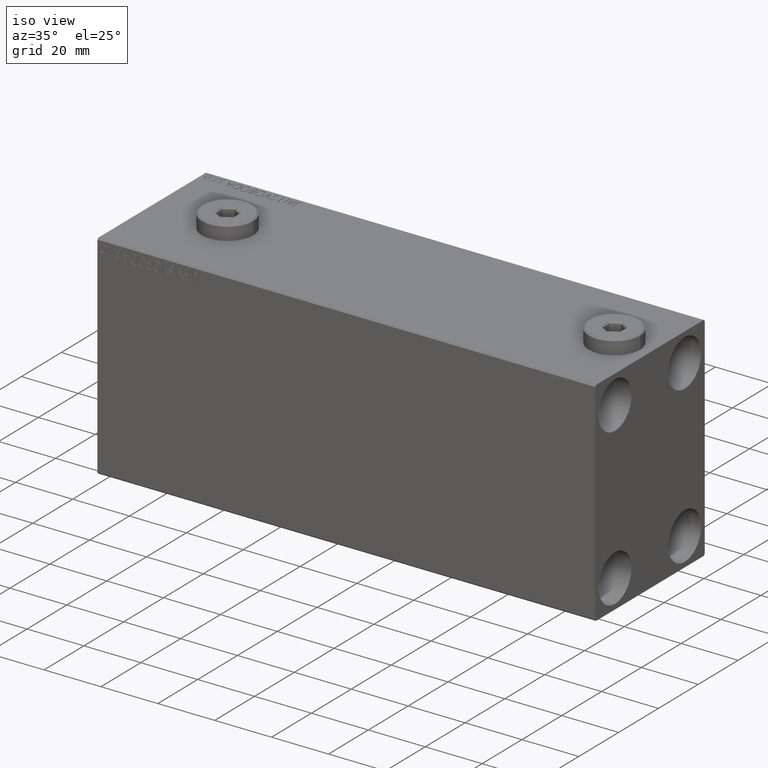
[diagram: clean part render]
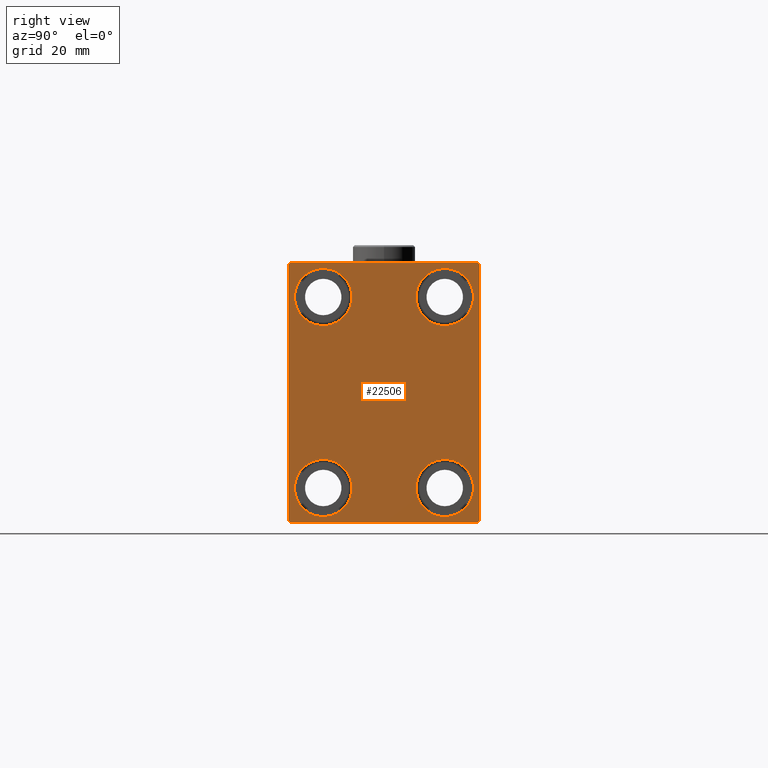
[diagram: tour spotlight — one face highlighted and labeled with its STEP entity id]
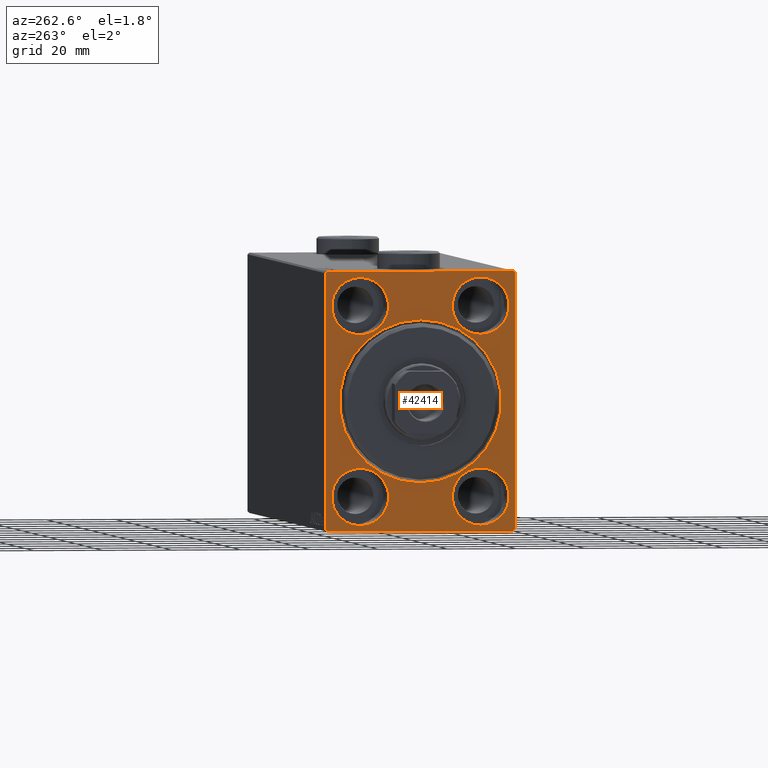
[diagram: tour spotlight — one face highlighted and labeled with its STEP entity id]
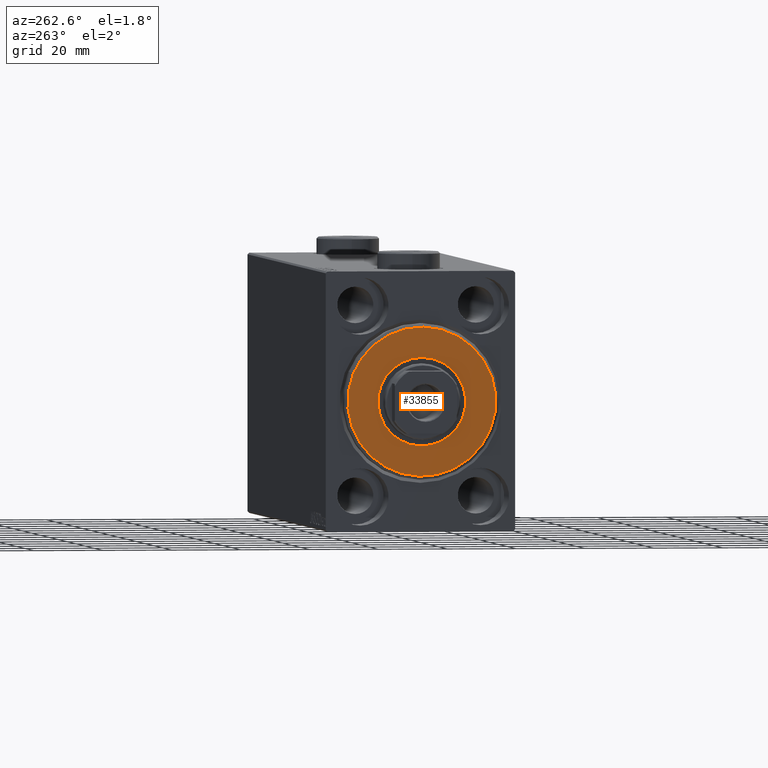
[diagram: tour spotlight — one face highlighted and labeled with its STEP entity id]
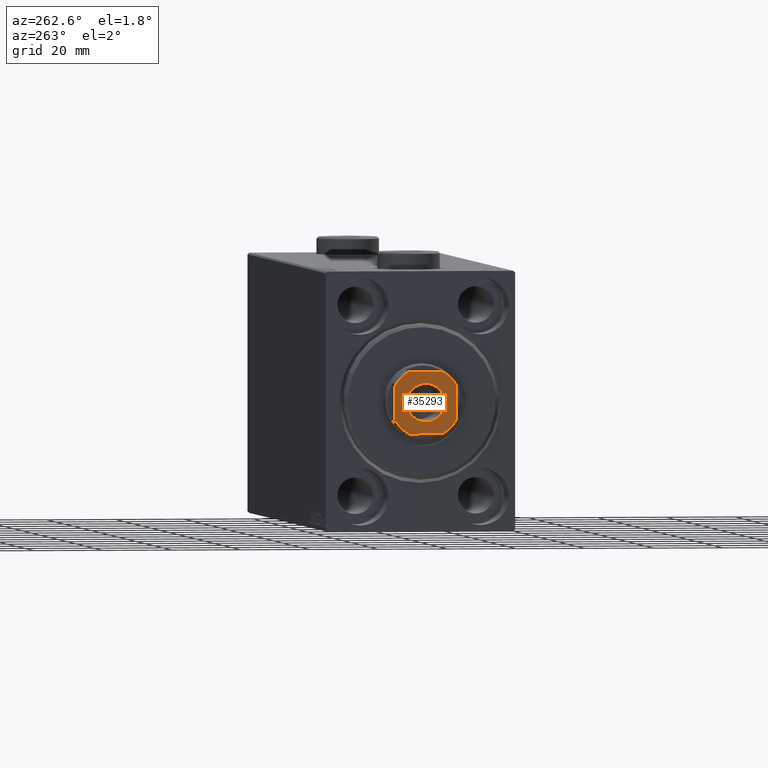
[diagram: tour spotlight — one face highlighted and labeled with its STEP entity id]
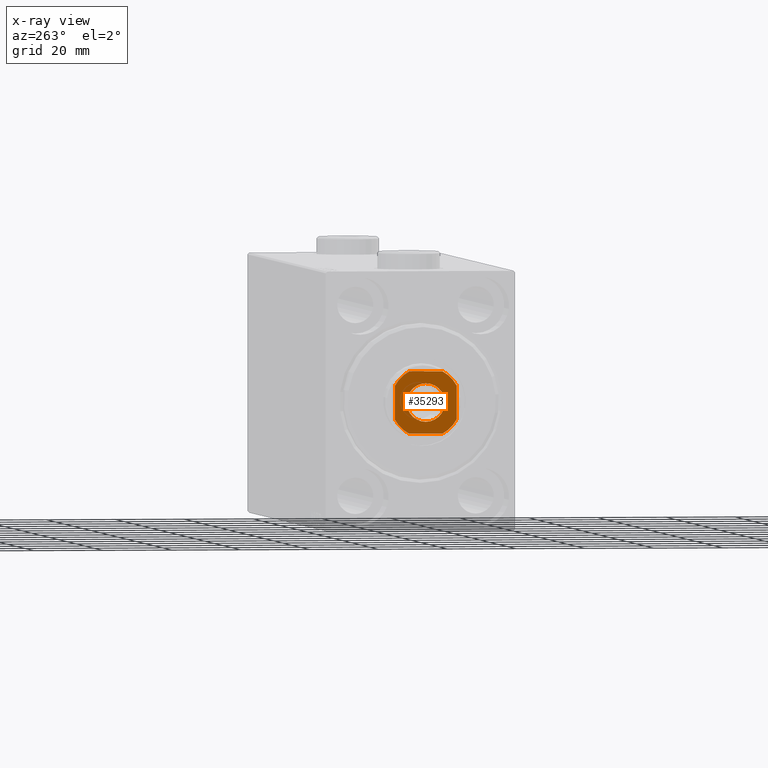
[diagram: x-ray of the same camera — body ghosted, this tour face saturated]
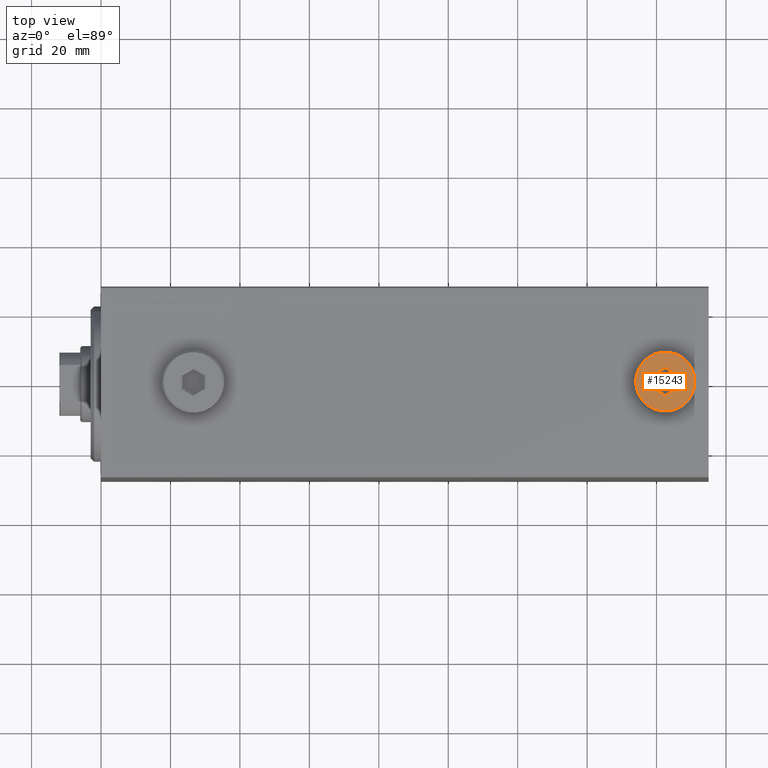
[diagram: tour spotlight — one face highlighted and labeled with its STEP entity id]
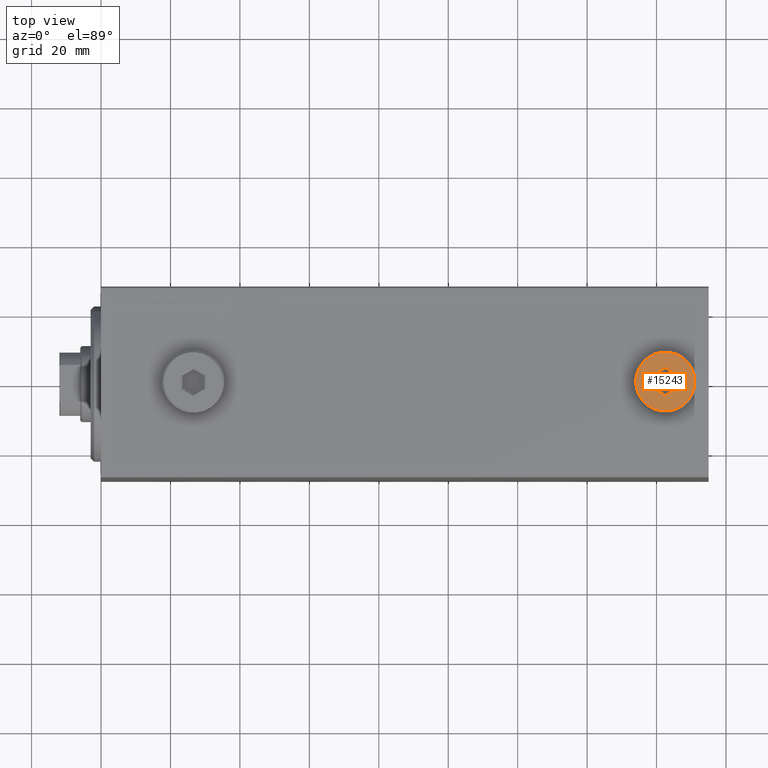
[diagram: tour spotlight — one face highlighted and labeled with its STEP entity id]
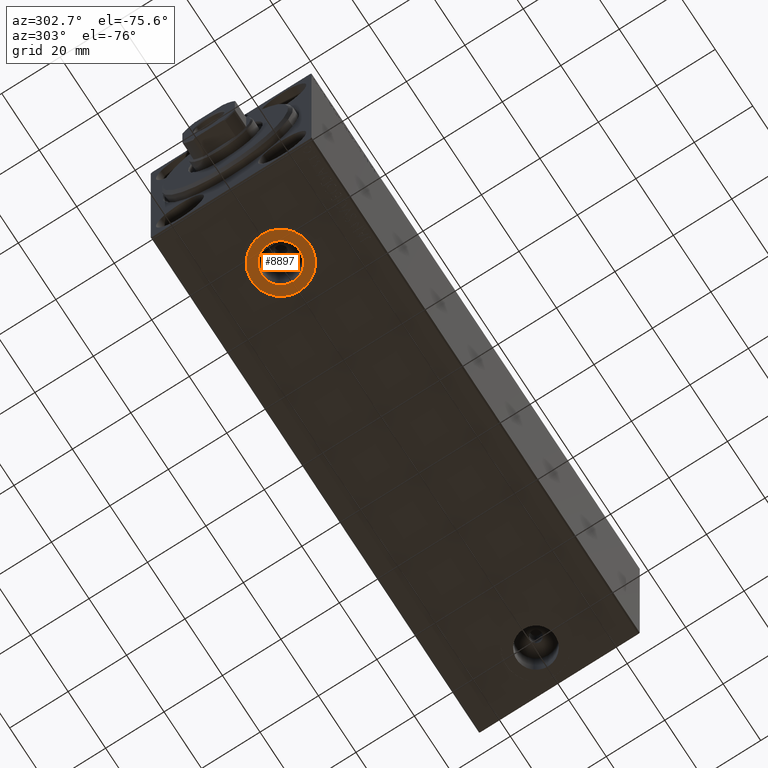
[diagram: tour spotlight — one face highlighted and labeled with its STEP entity id]
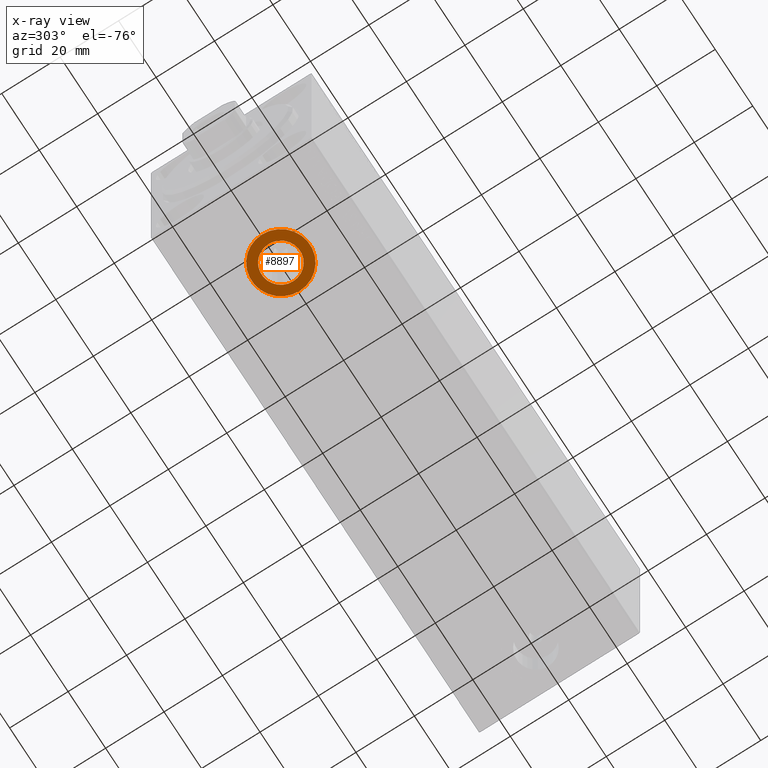
[diagram: x-ray of the same camera — body ghosted, this tour face saturated]
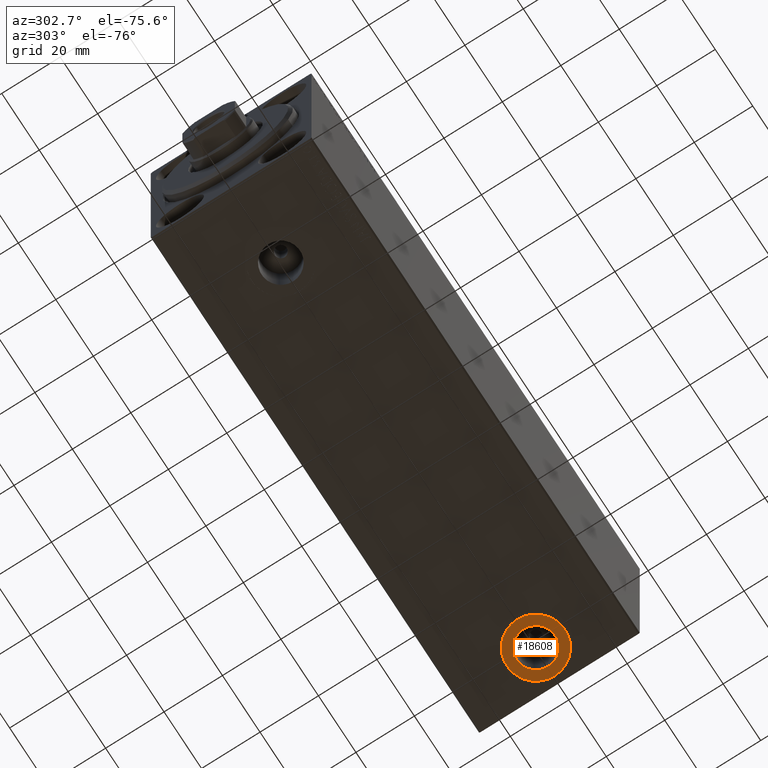
[diagram: tour spotlight — one face highlighted and labeled with its STEP entity id]
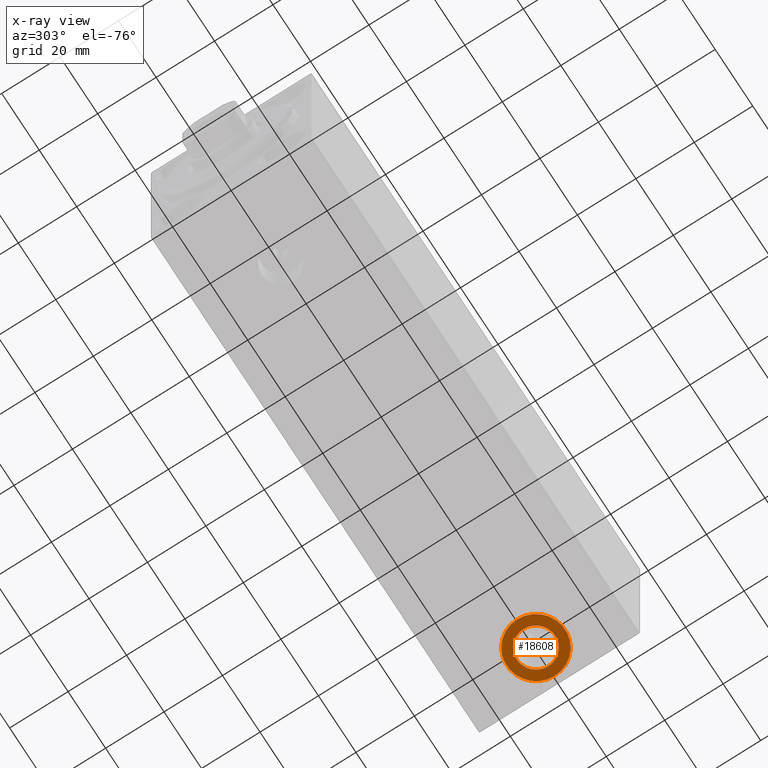
[diagram: x-ray of the same camera — body ghosted, this tour face saturated]
A machine part: a face-by-face anatomy tour. The part has 916 B-rep faces; the first image is the clean iso view, then the 8 largest visible faces are spotlighted one at a time (largest first), each with its STEP entity span.

Face 1 — right view, entity #22506. In plain terms, the highlighted planar face has unit normal (1, 0, 0).
Definition (entity closure, byte-faithful):
#135 = FACE_BOUND ( 'NONE', #23817, .T. ) ;
#458 = VERTEX_POINT ( 'NONE', #9889 ) ;
#463 = ORIENTED_EDGE ( 'NONE', *, *, #34625, .T. ) ;
#505 = AXIS2_PLACEMENT_3D ( 'NONE', #3650, #18273, #17585 ) ;
#539 = VECTOR ( 'NONE', #19696, 1000.000000000000000 ) ;
#581 = FACE_BOUND ( 'NONE', #4417, .T. ) ;
#710 = CARTESIAN_POINT ( 'NONE',  ( 175.0000000000000000, -27.00000000000000355, 37.50000000000000000 ) ) ;
#959 = CARTESIAN_POINT ( 'NONE',  ( 175.0000000000000000, 27.50000000000000355, -37.50000000000000000 ) ) ;
#1712 = EDGE_CURVE ( 'NONE', #40381, #458, #39927, .T. ) ;
#2036 = CARTESIAN_POINT ( 'NONE',  ( 175.0000000000000000, 17.49999999999999645, -27.50000000000000355 ) ) ;
#2165 = ORIENTED_EDGE ( 'NONE', *, *, #31935, .T. ) ;
#2197 = AXIS2_PLACEMENT_3D ( 'NONE', #8607, #14807, #35809 ) ;
#2351 = DIRECTION ( 'NONE',  ( -0.000000000000000000, -0.7071067811865524577, 0.7071067811865426878 ) ) ;
#2761 = EDGE_CURVE ( 'NONE', #34136, #20269, #36837, .T. ) ;
#3360 = FACE_BOUND ( 'NONE', #28188, .T. ) ;
#3650 = CARTESIAN_POINT ( 'NONE',  ( 175.0000000000000000, 17.50000000000000355, 27.49999999999999645 ) ) ;
#3653 = CIRCLE ( 'NONE', #2197, 8.249999999999992895 ) ;
#4031 = CARTESIAN_POINT ( 'NONE',  ( 175.0000000000000000, 0.000000000000000000, 0.000000000000000000 ) ) ;
#4118 = DIRECTION ( 'NONE',  ( -0.000000000000000000, 0.7071067811865474617, 0.7071067811865474617 ) ) ;
#4401 = EDGE_LOOP ( 'NONE', ( #15164, #42633 ) ) ;
#4417 = EDGE_LOOP ( 'NONE', ( #12395, #17842 ) ) ;
#4576 = CIRCLE ( 'NONE', #41077, 8.249999999999992895 ) ;
#6340 = CARTESIAN_POINT ( 'NONE',  ( 175.0000000000000000, -17.49999999999999645, 27.49999999999999645 ) ) ;
#6691 = AXIS2_PLACEMENT_3D ( 'NONE', #44899, #13605, #10163 ) ;
#6719 = VECTOR ( 'NONE', #7999, 1000.000000000000114 ) ;
#7176 = DIRECTION ( 'NONE',  ( 0.000000000000000000, 0.000000000000000000, 1.000000000000000000 ) ) ;
#7219 = DIRECTION ( 'NONE',  ( 1.000000000000000000, 0.000000000000000000, 0.000000000000000000 ) ) ;
#7999 = DIRECTION ( 'NONE',  ( 0.000000000000000000, -0.7071067811865474617, -0.7071067811865474617 ) ) ;
#8082 = CARTESIAN_POINT ( 'NONE',  ( 175.0000000000000000, -17.49999999999999645, 35.74999999999999289 ) ) ;
#8607 = CARTESIAN_POINT ( 'NONE',  ( 175.0000000000000000, 17.50000000000000355, 27.49999999999999645 ) ) ;
#8692 = CARTESIAN_POINT ( 'NONE',  ( 175.0000000000000000, -17.50000000000000355, -19.25000000000000355 ) ) ;
#8879 = AXIS2_PLACEMENT_3D ( 'NONE', #34611, #45114, #7176 ) ;
#9211 = ORIENTED_EDGE ( 'NONE', *, *, #12979, .T. ) ;
#9243 = CARTESIAN_POINT ( 'NONE',  ( 175.0000000000000000, 27.50000000000000355, -37.00000000000002842 ) ) ;
#9300 = CARTESIAN_POINT ( 'NONE',  ( 175.0000000000000000, -17.49999999999999645, 19.25000000000000000 ) ) ;
#9862 = CARTESIAN_POINT ( 'NONE',  ( 175.0000000000000000, 17.49999999999999645, -35.75000000000000711 ) ) ;
#9889 = CARTESIAN_POINT ( 'NONE',  ( 175.0000000000000000, 17.50000000000000355, 35.74999999999999289 ) ) ;
#10163 = DIRECTION ( 'NONE',  ( 0.000000000000000000, 0.000000000000000000, 1.000000000000000000 ) ) ;
#10757 = ORIENTED_EDGE ( 'NONE', *, *, #25147, .T. ) ;
#12014 = EDGE_CURVE ( 'NONE', #13365, #42156, #30672, .T. ) ;
#12395 = ORIENTED_EDGE ( 'NONE', *, *, #20114, .T. ) ;
#12486 = AXIS2_PLACEMENT_3D ( 'NONE', #34801, #13354, #41437 ) ;
#12618 = VECTOR ( 'NONE', #29479, 1000.000000000000000 ) ;
#12979 = EDGE_CURVE ( 'NONE', #14301, #13086, #33648, .T. ) ;
#13086 = VERTEX_POINT ( 'NONE', #20612 ) ;
#13354 = DIRECTION ( 'NONE',  ( -1.000000000000000000, -0.000000000000000000, -0.000000000000000000 ) ) ;
#13365 = VERTEX_POINT ( 'NONE', #34705 ) ;
#13605 = DIRECTION ( 'NONE',  ( -1.000000000000000000, -0.000000000000000000, -0.000000000000000000 ) ) ;
#13841 = DIRECTION ( 'NONE',  ( 0.000000000000000000, -9.251858538542970348E-17, 1.000000000000000000 ) ) ;
#13875 = FACE_OUTER_BOUND ( 'NONE', #15143, .T. ) ;
#13908 = CIRCLE ( 'NONE', #12486, 8.249999999999992895 ) ;
#14301 = VERTEX_POINT ( 'NONE', #18607 ) ;
#14449 = DIRECTION ( 'NONE',  ( 0.000000000000000000, 0.000000000000000000, 1.000000000000000000 ) ) ;
#14706 = ORIENTED_EDGE ( 'NONE', *, *, #2761, .T. ) ;
#14720 = LINE ( 'NONE', #29099, #24920 ) ;
#14807 = DIRECTION ( 'NONE',  ( -1.000000000000000000, -0.000000000000000000, -0.000000000000000000 ) ) ;
#15143 = EDGE_LOOP ( 'NONE', ( #33295, #21037, #23195, #30900, #14706, #2165, #24921, #9211 ) ) ;
#15164 = ORIENTED_EDGE ( 'NONE', *, *, #1712, .T. ) ;
#16416 = DIRECTION ( 'NONE',  ( -1.000000000000000000, -0.000000000000000000, -0.000000000000000000 ) ) ;
#16422 = VERTEX_POINT ( 'NONE', #29247 ) ;
#17585 = DIRECTION ( 'NONE',  ( 0.000000000000000000, 0.000000000000000000, 1.000000000000000000 ) ) ;
#17842 = ORIENTED_EDGE ( 'NONE', *, *, #31544, .T. ) ;
#18269 = CARTESIAN_POINT ( 'NONE',  ( 175.0000000000000000, 17.50000000000000355, 19.25000000000000000 ) ) ;
#18273 = DIRECTION ( 'NONE',  ( -1.000000000000000000, -0.000000000000000000, -0.000000000000000000 ) ) ;
#18302 = CARTESIAN_POINT ( 'NONE',  ( 175.0000000000000000, -32.25000000000000000, 32.25000000000000000 ) ) ;
#18524 = VERTEX_POINT ( 'NONE', #710 ) ;
#18607 = CARTESIAN_POINT ( 'NONE',  ( 175.0000000000000000, 27.49999999999999645, 37.00000000000001421 ) ) ;
#18879 = ORIENTED_EDGE ( 'NONE', *, *, #34645, .T. ) ;
#19407 = DIRECTION ( 'NONE',  ( -1.000000000000000000, -0.000000000000000000, -0.000000000000000000 ) ) ;
#19636 = EDGE_CURVE ( 'NONE', #18524, #16422, #21492, .T. ) ;
#19696 = DIRECTION ( 'NONE',  ( 0.000000000000000000, 1.000000000000000000, 0.000000000000000000 ) ) ;
#19765 = CARTESIAN_POINT ( 'NONE',  ( 175.0000000000000000, 17.49999999999999645, -27.50000000000000355 ) ) ;
#20114 = EDGE_CURVE ( 'NONE', #42581, #24804, #4576, .T. ) ;
#20269 = VERTEX_POINT ( 'NONE', #32287 ) ;
#20612 = CARTESIAN_POINT ( 'NONE',  ( 175.0000000000000000, 26.99999999999999645, 37.50000000000000711 ) ) ;
#21037 = ORIENTED_EDGE ( 'NONE', *, *, #19636, .T. ) ;
#21166 = FACE_BOUND ( 'NONE', #4401, .T. ) ;
#21422 = AXIS2_PLACEMENT_3D ( 'NONE', #4031, #7219, #38321 ) ;
#21492 = LINE ( 'NONE', #18302, #6719 ) ;
#22506 = ADVANCED_FACE ( 'NONE', ( #135, #581, #21166, #3360, #13875 ), #41742, .T. ) ;
#22533 = CARTESIAN_POINT ( 'NONE',  ( 175.0000000000000000, 27.49999999999999645, 37.50000000000000711 ) ) ;
#22617 = AXIS2_PLACEMENT_3D ( 'NONE', #2036, #19407, #14449 ) ;
#23195 = ORIENTED_EDGE ( 'NONE', *, *, #33778, .T. ) ;
#23470 = EDGE_CURVE ( 'NONE', #13086, #18524, #39896, .T. ) ;
#23817 = EDGE_LOOP ( 'NONE', ( #10757, #40838 ) ) ;
#24804 = VERTEX_POINT ( 'NONE', #8082 ) ;
#24920 = VECTOR ( 'NONE', #32979, 1000.000000000000000 ) ;
#24921 = ORIENTED_EDGE ( 'NONE', *, *, #45085, .T. ) ;
#25147 = EDGE_CURVE ( 'NONE', #42156, #13365, #41594, .T. ) ;
#25149 = LINE ( 'NONE', #39296, #29239 ) ;
#28188 = EDGE_LOOP ( 'NONE', ( #18879, #463 ) ) ;
#28511 = VECTOR ( 'NONE', #2351, 1000.000000000000000 ) ;
#28803 = LINE ( 'NONE', #39761, #12618 ) ;
#29099 = CARTESIAN_POINT ( 'NONE',  ( 175.0000000000000000, -27.50000000000000355, 37.50000000000000000 ) ) ;
#29239 = VECTOR ( 'NONE', #4118, 1000.000000000000114 ) ;
#29247 = CARTESIAN_POINT ( 'NONE',  ( 175.0000000000000000, -27.50000000000000355, 37.00000000000000000 ) ) ;
#29479 = DIRECTION ( 'NONE',  ( -0.000000000000000000, 0.7071067811865672237, -0.7071067811865279218 ) ) ;
#29843 = DIRECTION ( 'NONE',  ( 0.000000000000000000, -1.000000000000000000, -1.261617073437677999E-16 ) ) ;
#30672 = CIRCLE ( 'NONE', #41592, 8.250000000000000000 ) ;
#30900 = ORIENTED_EDGE ( 'NONE', *, *, #37342, .T. ) ;
#30938 = EDGE_CURVE ( 'NONE', #458, #40381, #3653, .T. ) ;
#30948 = VERTEX_POINT ( 'NONE', #43349 ) ;
#31472 = CIRCLE ( 'NONE', #6691, 8.250000000000000000 ) ;
#31544 = EDGE_CURVE ( 'NONE', #24804, #42581, #13908, .T. ) ;
#31935 = EDGE_CURVE ( 'NONE', #20269, #36558, #25149, .T. ) ;
#32287 = CARTESIAN_POINT ( 'NONE',  ( 175.0000000000000000, 27.00000000000003197, -37.50000000000000000 ) ) ;
#32616 = VERTEX_POINT ( 'NONE', #38205 ) ;
#32721 = VERTEX_POINT ( 'NONE', #8692 ) ;
#32979 = DIRECTION ( 'NONE',  ( 0.000000000000000000, 0.000000000000000000, -1.000000000000000000 ) ) ;
#33295 = ORIENTED_EDGE ( 'NONE', *, *, #23470, .T. ) ;
#33648 = LINE ( 'NONE', #44377, #28511 ) ;
#33700 = CIRCLE ( 'NONE', #8879, 8.250000000000000000 ) ;
#33778 = EDGE_CURVE ( 'NONE', #16422, #30948, #14720, .T. ) ;
#34130 = DIRECTION ( 'NONE',  ( 0.000000000000000000, 0.000000000000000000, 1.000000000000000000 ) ) ;
#34136 = VERTEX_POINT ( 'NONE', #36525 ) ;
#34611 = CARTESIAN_POINT ( 'NONE',  ( 175.0000000000000000, -17.50000000000000355, -27.50000000000000355 ) ) ;
#34625 = EDGE_CURVE ( 'NONE', #32721, #32616, #33700, .T. ) ;
#34645 = EDGE_CURVE ( 'NONE', #32616, #32721, #31472, .T. ) ;
#34705 = CARTESIAN_POINT ( 'NONE',  ( 175.0000000000000000, 17.49999999999999645, -19.25000000000000355 ) ) ;
#34801 = CARTESIAN_POINT ( 'NONE',  ( 175.0000000000000000, -17.49999999999999645, 27.49999999999999645 ) ) ;
#35809 = DIRECTION ( 'NONE',  ( 0.000000000000000000, 0.000000000000000000, 1.000000000000000000 ) ) ;
#36525 = CARTESIAN_POINT ( 'NONE',  ( 175.0000000000000000, -26.99999999999997513, -37.50000000000000000 ) ) ;
#36558 = VERTEX_POINT ( 'NONE', #9243 ) ;
#36799 = VECTOR ( 'NONE', #13841, 1000.000000000000000 ) ;
#36837 = LINE ( 'NONE', #41162, #539 ) ;
#37342 = EDGE_CURVE ( 'NONE', #30948, #34136, #28803, .T. ) ;
#37419 = DIRECTION ( 'NONE',  ( 0.000000000000000000, 0.000000000000000000, 1.000000000000000000 ) ) ;
#37495 = VECTOR ( 'NONE', #29843, 1000.000000000000000 ) ;
#38205 = CARTESIAN_POINT ( 'NONE',  ( 175.0000000000000000, -17.50000000000000355, -35.75000000000000711 ) ) ;
#38321 = DIRECTION ( 'NONE',  ( 0.000000000000000000, 0.000000000000000000, -1.000000000000000000 ) ) ;
#39296 = CARTESIAN_POINT ( 'NONE',  ( 175.0000000000000000, 32.25000000000001421, -32.25000000000001421 ) ) ;
#39761 = CARTESIAN_POINT ( 'NONE',  ( 175.0000000000000000, -32.24999999999923972, -32.25000000000103029 ) ) ;
#39896 = LINE ( 'NONE', #22533, #37495 ) ;
#39927 = CIRCLE ( 'NONE', #505, 8.249999999999992895 ) ;
#40381 = VERTEX_POINT ( 'NONE', #18269 ) ;
#40838 = ORIENTED_EDGE ( 'NONE', *, *, #12014, .T. ) ;
#41077 = AXIS2_PLACEMENT_3D ( 'NONE', #6340, #16416, #37419 ) ;
#41162 = CARTESIAN_POINT ( 'NONE',  ( 175.0000000000000000, -27.50000000000000355, -37.50000000000000000 ) ) ;
#41437 = DIRECTION ( 'NONE',  ( 0.000000000000000000, 0.000000000000000000, 1.000000000000000000 ) ) ;
#41592 = AXIS2_PLACEMENT_3D ( 'NONE', #19765, #43752, #34130 ) ;
#41594 = CIRCLE ( 'NONE', #22617, 8.250000000000000000 ) ;
#41710 = LINE ( 'NONE', #959, #36799 ) ;
#41742 = PLANE ( 'NONE',  #21422 ) ;
#42156 = VERTEX_POINT ( 'NONE', #9862 ) ;
#42581 = VERTEX_POINT ( 'NONE', #9300 ) ;
#42633 = ORIENTED_EDGE ( 'NONE', *, *, #30938, .T. ) ;
#43349 = CARTESIAN_POINT ( 'NONE',  ( 175.0000000000000000, -27.50000000000000355, -37.00000000000000000 ) ) ;
#43752 = DIRECTION ( 'NONE',  ( -1.000000000000000000, -0.000000000000000000, -0.000000000000000000 ) ) ;
#44377 = CARTESIAN_POINT ( 'NONE',  ( 175.0000000000000000, 32.24999999999981526, 32.25000000000025580 ) ) ;
#44899 = CARTESIAN_POINT ( 'NONE',  ( 175.0000000000000000, -17.50000000000000355, -27.50000000000000355 ) ) ;
#45085 = EDGE_CURVE ( 'NONE', #36558, #14301, #41710, .T. ) ;
#45114 = DIRECTION ( 'NONE',  ( -1.000000000000000000, -0.000000000000000000, -0.000000000000000000 ) ) ;

Face 2 — auxiliary view, entity #42414. In plain terms, the highlighted planar face has unit normal (1, 0, 0).
Definition (entity closure, byte-faithful):
#562 = VERTEX_POINT ( 'NONE', #32243 ) ;
#864 = CARTESIAN_POINT ( 'NONE',  ( 0.000000000000000000, 17.50000000000000355, 19.25000000000000000 ) ) ;
#1335 = LINE ( 'NONE', #19399, #39700 ) ;
#1384 = VERTEX_POINT ( 'NONE', #17471 ) ;
#1557 = CARTESIAN_POINT ( 'NONE',  ( 0.000000000000000000, -17.49999999999999645, 35.74999999999999289 ) ) ;
#1763 = VECTOR ( 'NONE', #6534, 1000.000000000000000 ) ;
#1812 = CARTESIAN_POINT ( 'NONE',  ( 0.000000000000000000, -26.99999999999997513, -37.50000000000000000 ) ) ;
#1843 = ORIENTED_EDGE ( 'NONE', *, *, #11495, .F. ) ;
#2135 = VECTOR ( 'NONE', #4586, 1000.000000000000114 ) ;
#2279 = DIRECTION ( 'NONE',  ( 1.000000000000000000, 0.000000000000000000, 0.000000000000000000 ) ) ;
#2385 = CARTESIAN_POINT ( 'NONE',  ( 0.000000000000000000, 27.50000000000000355, -37.00000000000002842 ) ) ;
#2636 = CARTESIAN_POINT ( 'NONE',  ( 0.000000000000000000, 17.50000000000000355, 27.49999999999999645 ) ) ;
#2844 = ORIENTED_EDGE ( 'NONE', *, *, #26161, .F. ) ;
#3172 = CIRCLE ( 'NONE', #38197, 23.49999999999998934 ) ;
#3692 = ORIENTED_EDGE ( 'NONE', *, *, #22362, .T. ) ;
#4245 = CIRCLE ( 'NONE', #40754, 8.249999999999992895 ) ;
#4418 = EDGE_CURVE ( 'NONE', #41185, #13492, #4245, .T. ) ;
#4586 = DIRECTION ( 'NONE',  ( -0.000000000000000000, 0.7071067811865474617, 0.7071067811865474617 ) ) ;
#4639 = CIRCLE ( 'NONE', #34575, 8.250000000000000000 ) ;
#4687 = EDGE_CURVE ( 'NONE', #32231, #562, #32260, .T. ) ;
#5098 = CIRCLE ( 'NONE', #36469, 8.249999999999992895 ) ;
#5223 = EDGE_CURVE ( 'NONE', #44646, #30611, #17988, .T. ) ;
#5303 = DIRECTION ( 'NONE',  ( 0.000000000000000000, 0.000000000000000000, 1.000000000000000000 ) ) ;
#5597 = VERTEX_POINT ( 'NONE', #22903 ) ;
#5678 = CARTESIAN_POINT ( 'NONE',  ( 0.000000000000000000, -26.99999999999997513, -37.50000000000000000 ) ) ;
#5790 = ORIENTED_EDGE ( 'NONE', *, *, #6546, .F. ) ;
#6104 = LINE ( 'NONE', #44473, #1763 ) ;
#6216 = ORIENTED_EDGE ( 'NONE', *, *, #26710, .F. ) ;
#6493 = CIRCLE ( 'NONE', #32021, 8.250000000000000000 ) ;
#6534 = DIRECTION ( 'NONE',  ( 0.000000000000000000, -9.251858538542970348E-17, 1.000000000000000000 ) ) ;
#6546 = EDGE_CURVE ( 'NONE', #5597, #42393, #31317, .T. ) ;
#7373 = VERTEX_POINT ( 'NONE', #13707 ) ;
#7400 = DIRECTION ( 'NONE',  ( 0.000000000000000000, -0.7071067811865474617, -0.7071067811865474617 ) ) ;
#8068 = CARTESIAN_POINT ( 'NONE',  ( 0.000000000000000000, 17.49999999999999645, -27.50000000000000355 ) ) ;
#8238 = CARTESIAN_POINT ( 'NONE',  ( 0.000000000000000000, 27.49999999999999645, 37.50000000000000711 ) ) ;
#9142 = FACE_BOUND ( 'NONE', #38980, .T. ) ;
#9397 = CARTESIAN_POINT ( 'NONE',  ( 0.000000000000000000, -17.50000000000000355, -27.50000000000000355 ) ) ;
#10024 = EDGE_CURVE ( 'NONE', #42160, #39254, #32024, .T. ) ;
#10119 = VECTOR ( 'NONE', #28957, 1000.000000000000000 ) ;
#10214 = EDGE_CURVE ( 'NONE', #32231, #37028, #42738, .T. ) ;
#10754 = ORIENTED_EDGE ( 'NONE', *, *, #42678, .T. ) ;
#10829 = LINE ( 'NONE', #38702, #34959 ) ;
#11145 = ORIENTED_EDGE ( 'NONE', *, *, #41904, .F. ) ;
#11209 = CARTESIAN_POINT ( 'NONE',  ( 0.000000000000000000, -17.49999999999999645, 27.49999999999999645 ) ) ;
#11495 = EDGE_CURVE ( 'NONE', #13492, #41185, #5098, .T. ) ;
#12340 = PLANE ( 'NONE',  #34536 ) ;
#12932 = CARTESIAN_POINT ( 'NONE',  ( 0.000000000000000000, 17.49999999999999645, -27.50000000000000355 ) ) ;
#13375 = DIRECTION ( 'NONE',  ( 0.000000000000000000, 0.000000000000000000, 1.000000000000000000 ) ) ;
#13492 = VERTEX_POINT ( 'NONE', #864 ) ;
#13707 = CARTESIAN_POINT ( 'NONE',  ( 0.000000000000000000, 26.99999999999999645, 37.50000000000000711 ) ) ;
#14567 = CARTESIAN_POINT ( 'NONE',  ( 0.000000000000000000, -27.50000000000000355, -37.50000000000000000 ) ) ;
#14647 = EDGE_LOOP ( 'NONE', ( #31275, #35263, #19699, #15040, #11145, #40465, #38740, #32671 ) ) ;
#14958 = DIRECTION ( 'NONE',  ( 0.000000000000000000, 0.000000000000000000, 1.000000000000000000 ) ) ;
#14987 = DIRECTION ( 'NONE',  ( 1.000000000000000000, 0.000000000000000000, 0.000000000000000000 ) ) ;
#15040 = ORIENTED_EDGE ( 'NONE', *, *, #24229, .T. ) ;
#15352 = AXIS2_PLACEMENT_3D ( 'NONE', #18516, #18287, #32437 ) ;
#15594 = CARTESIAN_POINT ( 'NONE',  ( 0.000000000000000000, -27.50000000000000355, 37.50000000000000000 ) ) ;
#15666 = EDGE_CURVE ( 'NONE', #24362, #30887, #38775, .T. ) ;
#15775 = FACE_BOUND ( 'NONE', #42522, .T. ) ;
#16065 = ORIENTED_EDGE ( 'NONE', *, *, #15666, .F. ) ;
#16226 = DIRECTION ( 'NONE',  ( 0.000000000000000000, 0.000000000000000000, -1.000000000000000000 ) ) ;
#17219 = CARTESIAN_POINT ( 'NONE',  ( 0.000000000000000000, 27.00000000000003197, -37.50000000000000000 ) ) ;
#17471 = CARTESIAN_POINT ( 'NONE',  ( 0.000000000000000000, 2.877919977996279137E-15, -23.49999999999998934 ) ) ;
#17988 = LINE ( 'NONE', #14567, #10119 ) ;
#17990 = CARTESIAN_POINT ( 'NONE',  ( 0.000000000000000000, -17.50000000000000355, -35.75000000000000711 ) ) ;
#18173 = CARTESIAN_POINT ( 'NONE',  ( 0.000000000000000000, -27.50000000000000355, 37.00000000000000000 ) ) ;
#18287 = DIRECTION ( 'NONE',  ( -1.000000000000000000, 0.000000000000000000, 0.000000000000000000 ) ) ;
#18516 = CARTESIAN_POINT ( 'NONE',  ( 0.000000000000000000, -17.49999999999999645, 27.49999999999999645 ) ) ;
#19202 = CARTESIAN_POINT ( 'NONE',  ( 0.000000000000000000, 17.49999999999999645, -19.25000000000000355 ) ) ;
#19399 = CARTESIAN_POINT ( 'NONE',  ( 0.000000000000000000, 26.99999999999999645, 37.50000000000000711 ) ) ;
#19561 = CARTESIAN_POINT ( 'NONE',  ( 0.000000000000000000, 27.49999999999999645, 37.00000000000001421 ) ) ;
#19699 = ORIENTED_EDGE ( 'NONE', *, *, #27631, .F. ) ;
#19747 = DIRECTION ( 'NONE',  ( 0.000000000000000000, 0.000000000000000000, 1.000000000000000000 ) ) ;
#20226 = DIRECTION ( 'NONE',  ( -1.000000000000000000, 0.000000000000000000, 0.000000000000000000 ) ) ;
#21721 = LINE ( 'NONE', #8238, #23305 ) ;
#22131 = DIRECTION ( 'NONE',  ( 0.000000000000000000, 0.000000000000000000, -1.000000000000000000 ) ) ;
#22155 = AXIS2_PLACEMENT_3D ( 'NONE', #28985, #26011, #22131 ) ;
#22362 = EDGE_CURVE ( 'NONE', #25853, #1384, #41849, .T. ) ;
#22903 = CARTESIAN_POINT ( 'NONE',  ( 0.000000000000000000, 17.49999999999999645, -35.75000000000000711 ) ) ;
#22939 = EDGE_CURVE ( 'NONE', #42393, #5597, #4639, .T. ) ;
#23305 = VECTOR ( 'NONE', #42754, 1000.000000000000000 ) ;
#23359 = CARTESIAN_POINT ( 'NONE',  ( 0.000000000000000000, -27.00000000000000355, 37.50000000000000000 ) ) ;
#23542 = VERTEX_POINT ( 'NONE', #19561 ) ;
#24133 = CARTESIAN_POINT ( 'NONE',  ( 0.000000000000000000, 0.000000000000000000, 0.000000000000000000 ) ) ;
#24229 = EDGE_CURVE ( 'NONE', #7373, #23542, #1335, .T. ) ;
#24362 = VERTEX_POINT ( 'NONE', #37218 ) ;
#24925 = DIRECTION ( 'NONE',  ( -1.000000000000000000, 0.000000000000000000, 0.000000000000000000 ) ) ;
#25481 = AXIS2_PLACEMENT_3D ( 'NONE', #11209, #24925, #38845 ) ;
#25624 = VERTEX_POINT ( 'NONE', #2385 ) ;
#25853 = VERTEX_POINT ( 'NONE', #33851 ) ;
#25875 = CARTESIAN_POINT ( 'NONE',  ( 0.000000000000000000, 17.50000000000000355, 35.74999999999999289 ) ) ;
#26011 = DIRECTION ( 'NONE',  ( 1.000000000000000000, 0.000000000000000000, 0.000000000000000000 ) ) ;
#26130 = DIRECTION ( 'NONE',  ( -1.000000000000000000, 0.000000000000000000, 0.000000000000000000 ) ) ;
#26161 = EDGE_CURVE ( 'NONE', #39254, #42160, #34214, .T. ) ;
#26252 = DIRECTION ( 'NONE',  ( -0.000000000000000000, 0.7071067811865524577, -0.7071067811865426878 ) ) ;
#26318 = DIRECTION ( 'NONE',  ( -1.000000000000000000, 0.000000000000000000, 0.000000000000000000 ) ) ;
#26374 = AXIS2_PLACEMENT_3D ( 'NONE', #9397, #26318, #5303 ) ;
#26644 = DIRECTION ( 'NONE',  ( -1.000000000000000000, 0.000000000000000000, 0.000000000000000000 ) ) ;
#26710 = EDGE_CURVE ( 'NONE', #30887, #24362, #6493, .T. ) ;
#26915 = EDGE_LOOP ( 'NONE', ( #33913, #1843 ) ) ;
#27281 = CARTESIAN_POINT ( 'NONE',  ( 0.000000000000000000, 17.50000000000000355, 27.49999999999999645 ) ) ;
#27631 = EDGE_CURVE ( 'NONE', #7373, #37028, #21721, .T. ) ;
#28381 = VECTOR ( 'NONE', #43454, 1000.000000000000000 ) ;
#28460 = EDGE_LOOP ( 'NONE', ( #3692, #10754 ) ) ;
#28498 = EDGE_CURVE ( 'NONE', #25624, #30611, #10829, .T. ) ;
#28957 = DIRECTION ( 'NONE',  ( 0.000000000000000000, 1.000000000000000000, 0.000000000000000000 ) ) ;
#28985 = CARTESIAN_POINT ( 'NONE',  ( 0.000000000000000000, 0.000000000000000000, 0.000000000000000000 ) ) ;
#29701 = FACE_BOUND ( 'NONE', #33864, .T. ) ;
#29863 = AXIS2_PLACEMENT_3D ( 'NONE', #12932, #20226, #13375 ) ;
#30611 = VERTEX_POINT ( 'NONE', #17219 ) ;
#30655 = CARTESIAN_POINT ( 'NONE',  ( 0.000000000000000000, -17.49999999999999645, 19.25000000000000000 ) ) ;
#30887 = VERTEX_POINT ( 'NONE', #17990 ) ;
#31275 = ORIENTED_EDGE ( 'NONE', *, *, #4687, .F. ) ;
#31317 = CIRCLE ( 'NONE', #29863, 8.250000000000000000 ) ;
#32021 = AXIS2_PLACEMENT_3D ( 'NONE', #39305, #42962, #43424 ) ;
#32024 = CIRCLE ( 'NONE', #25481, 8.249999999999992895 ) ;
#32231 = VERTEX_POINT ( 'NONE', #18173 ) ;
#32243 = CARTESIAN_POINT ( 'NONE',  ( 0.000000000000000000, -27.50000000000000355, -37.00000000000000000 ) ) ;
#32260 = LINE ( 'NONE', #15594, #28381 ) ;
#32437 = DIRECTION ( 'NONE',  ( 0.000000000000000000, 0.000000000000000000, 1.000000000000000000 ) ) ;
#32671 = ORIENTED_EDGE ( 'NONE', *, *, #39362, .T. ) ;
#32905 = CARTESIAN_POINT ( 'NONE',  ( 0.000000000000000000, -27.50000000000000355, 37.00000000000000000 ) ) ;
#33132 = FACE_BOUND ( 'NONE', #28460, .T. ) ;
#33578 = CARTESIAN_POINT ( 'NONE',  ( 0.000000000000000000, 0.000000000000000000, 0.000000000000000000 ) ) ;
#33851 = CARTESIAN_POINT ( 'NONE',  ( 0.000000000000000000, 0.000000000000000000, 23.49999999999998934 ) ) ;
#33864 = EDGE_LOOP ( 'NONE', ( #2844, #42627 ) ) ;
#33913 = ORIENTED_EDGE ( 'NONE', *, *, #4418, .F. ) ;
#34214 = CIRCLE ( 'NONE', #15352, 8.249999999999992895 ) ;
#34536 = AXIS2_PLACEMENT_3D ( 'NONE', #33578, #2279, #16226 ) ;
#34575 = AXIS2_PLACEMENT_3D ( 'NONE', #8068, #26130, #14958 ) ;
#34959 = VECTOR ( 'NONE', #7400, 1000.000000000000114 ) ;
#35263 = ORIENTED_EDGE ( 'NONE', *, *, #10214, .T. ) ;
#36469 = AXIS2_PLACEMENT_3D ( 'NONE', #2636, #26644, #40566 ) ;
#36979 = LINE ( 'NONE', #5678, #41112 ) ;
#37013 = FACE_OUTER_BOUND ( 'NONE', #14647, .T. ) ;
#37028 = VERTEX_POINT ( 'NONE', #23359 ) ;
#37218 = CARTESIAN_POINT ( 'NONE',  ( 0.000000000000000000, -17.50000000000000355, -19.25000000000000355 ) ) ;
#38197 = AXIS2_PLACEMENT_3D ( 'NONE', #24133, #14987, #39183 ) ;
#38702 = CARTESIAN_POINT ( 'NONE',  ( 0.000000000000000000, 27.50000000000000355, -37.00000000000002842 ) ) ;
#38740 = ORIENTED_EDGE ( 'NONE', *, *, #5223, .F. ) ;
#38775 = CIRCLE ( 'NONE', #26374, 8.250000000000000000 ) ;
#38845 = DIRECTION ( 'NONE',  ( 0.000000000000000000, 0.000000000000000000, 1.000000000000000000 ) ) ;
#38980 = EDGE_LOOP ( 'NONE', ( #16065, #6216 ) ) ;
#39183 = DIRECTION ( 'NONE',  ( 0.000000000000000000, 0.000000000000000000, -1.000000000000000000 ) ) ;
#39254 = VERTEX_POINT ( 'NONE', #1557 ) ;
#39305 = CARTESIAN_POINT ( 'NONE',  ( 0.000000000000000000, -17.50000000000000355, -27.50000000000000355 ) ) ;
#39362 = EDGE_CURVE ( 'NONE', #44646, #562, #36979, .T. ) ;
#39700 = VECTOR ( 'NONE', #26252, 1000.000000000000000 ) ;
#40308 = DIRECTION ( 'NONE',  ( -1.000000000000000000, 0.000000000000000000, 0.000000000000000000 ) ) ;
#40465 = ORIENTED_EDGE ( 'NONE', *, *, #28498, .T. ) ;
#40566 = DIRECTION ( 'NONE',  ( 0.000000000000000000, 0.000000000000000000, 1.000000000000000000 ) ) ;
#40754 = AXIS2_PLACEMENT_3D ( 'NONE', #27281, #40308, #19747 ) ;
#41112 = VECTOR ( 'NONE', #44502, 1000.000000000000000 ) ;
#41185 = VERTEX_POINT ( 'NONE', #25875 ) ;
#41849 = CIRCLE ( 'NONE', #22155, 23.49999999999998934 ) ;
#41904 = EDGE_CURVE ( 'NONE', #25624, #23542, #6104, .T. ) ;
#42160 = VERTEX_POINT ( 'NONE', #30655 ) ;
#42393 = VERTEX_POINT ( 'NONE', #19202 ) ;
#42414 = ADVANCED_FACE ( 'NONE', ( #33132, #15775, #29701, #43632, #9142, #37013 ), #12340, .F. ) ;
#42522 = EDGE_LOOP ( 'NONE', ( #42862, #5790 ) ) ;
#42627 = ORIENTED_EDGE ( 'NONE', *, *, #10024, .F. ) ;
#42678 = EDGE_CURVE ( 'NONE', #1384, #25853, #3172, .T. ) ;
#42738 = LINE ( 'NONE', #32905, #2135 ) ;
#42754 = DIRECTION ( 'NONE',  ( 0.000000000000000000, -1.000000000000000000, -1.261617073437677999E-16 ) ) ;
#42862 = ORIENTED_EDGE ( 'NONE', *, *, #22939, .F. ) ;
#42962 = DIRECTION ( 'NONE',  ( -1.000000000000000000, 0.000000000000000000, 0.000000000000000000 ) ) ;
#43424 = DIRECTION ( 'NONE',  ( 0.000000000000000000, 0.000000000000000000, 1.000000000000000000 ) ) ;
#43454 = DIRECTION ( 'NONE',  ( 0.000000000000000000, 0.000000000000000000, -1.000000000000000000 ) ) ;
#43632 = FACE_BOUND ( 'NONE', #26915, .T. ) ;
#44473 = CARTESIAN_POINT ( 'NONE',  ( 0.000000000000000000, 27.50000000000000355, -37.50000000000000000 ) ) ;
#44502 = DIRECTION ( 'NONE',  ( -0.000000000000000000, -0.7071067811865672237, 0.7071067811865279218 ) ) ;
#44646 = VERTEX_POINT ( 'NONE', #1812 ) ;

Face 3 — auxiliary view, entity #33855. In plain terms, the highlighted planar face has unit normal (-1, 0, 0).
Definition (entity closure, byte-faithful):
#768 = CIRCLE ( 'NONE', #26336, 12.75000000000000000 ) ;
#2365 = DIRECTION ( 'NONE',  ( 1.000000000000000000, -0.000000000000000000, 0.000000000000000000 ) ) ;
#3362 = DIRECTION ( 'NONE',  ( -1.000000000000000000, 0.000000000000000000, -0.000000000000000000 ) ) ;
#3806 = DIRECTION ( 'NONE',  ( 0.000000000000000000, 0.000000000000000000, -1.000000000000000000 ) ) ;
#4187 = EDGE_CURVE ( 'NONE', #36049, #33808, #8649, .T. ) ;
#7015 = DIRECTION ( 'NONE',  ( 1.000000000000000000, -0.000000000000000000, 0.000000000000000000 ) ) ;
#8111 = AXIS2_PLACEMENT_3D ( 'NONE', #12663, #2365, #43267 ) ;
#8149 = ORIENTED_EDGE ( 'NONE', *, *, #23344, .T. ) ;
#8649 = CIRCLE ( 'NONE', #34184, 21.50000000000000355 ) ;
#8759 = FACE_OUTER_BOUND ( 'NONE', #15736, .T. ) ;
#12430 = FACE_BOUND ( 'NONE', #33765, .T. ) ;
#12533 = ORIENTED_EDGE ( 'NONE', *, *, #31533, .T. ) ;
#12663 = CARTESIAN_POINT ( 'NONE',  ( 3.000000000000000000, 0.000000000000000000, 0.000000000000000000 ) ) ;
#13103 = CIRCLE ( 'NONE', #30604, 12.75000000000000000 ) ;
#14063 = DIRECTION ( 'NONE',  ( 0.000000000000000000, 0.000000000000000000, -1.000000000000000000 ) ) ;
#14333 = CARTESIAN_POINT ( 'NONE',  ( 3.000000000000000000, 0.000000000000000000, 0.000000000000000000 ) ) ;
#15736 = EDGE_LOOP ( 'NONE', ( #31709, #8149 ) ) ;
#19503 = CARTESIAN_POINT ( 'NONE',  ( 3.000000000000000000, 2.694222958124177598E-15, -21.50000000000000355 ) ) ;
#20906 = DIRECTION ( 'NONE',  ( 1.000000000000000000, -0.000000000000000000, 0.000000000000000000 ) ) ;
#23344 = EDGE_CURVE ( 'NONE', #33808, #36049, #27993, .T. ) ;
#23472 = ORIENTED_EDGE ( 'NONE', *, *, #28130, .T. ) ;
#23862 = DIRECTION ( 'NONE',  ( 0.000000000000000000, 0.000000000000000000, -1.000000000000000000 ) ) ;
#25193 = CARTESIAN_POINT ( 'NONE',  ( 3.000000000000000000, 0.000000000000000000, 21.50000000000000355 ) ) ;
#25883 = VERTEX_POINT ( 'NONE', #29751 ) ;
#26336 = AXIS2_PLACEMENT_3D ( 'NONE', #34580, #31151, #23862 ) ;
#26360 = PLANE ( 'NONE',  #8111 ) ;
#27132 = VERTEX_POINT ( 'NONE', #38313 ) ;
#27993 = CIRCLE ( 'NONE', #44089, 21.50000000000000355 ) ;
#28130 = EDGE_CURVE ( 'NONE', #27132, #25883, #13103, .T. ) ;
#29751 = CARTESIAN_POINT ( 'NONE',  ( 3.000000000000000000, 1.561424668912874914E-15, -12.75000000000000000 ) ) ;
#30604 = AXIS2_PLACEMENT_3D ( 'NONE', #41745, #3362, #3806 ) ;
#31151 = DIRECTION ( 'NONE',  ( -1.000000000000000000, 0.000000000000000000, -0.000000000000000000 ) ) ;
#31533 = EDGE_CURVE ( 'NONE', #25883, #27132, #768, .T. ) ;
#31709 = ORIENTED_EDGE ( 'NONE', *, *, #4187, .T. ) ;
#31901 = DIRECTION ( 'NONE',  ( 0.000000000000000000, 0.000000000000000000, -1.000000000000000000 ) ) ;
#33765 = EDGE_LOOP ( 'NONE', ( #23472, #12533 ) ) ;
#33808 = VERTEX_POINT ( 'NONE', #19503 ) ;
#33855 = ADVANCED_FACE ( 'NONE', ( #8759, #12430 ), #26360, .T. ) ;
#34184 = AXIS2_PLACEMENT_3D ( 'NONE', #34841, #20906, #14063 ) ;
#34580 = CARTESIAN_POINT ( 'NONE',  ( 3.000000000000000000, 0.000000000000000000, 0.000000000000000000 ) ) ;
#34841 = CARTESIAN_POINT ( 'NONE',  ( 3.000000000000000000, 0.000000000000000000, 0.000000000000000000 ) ) ;
#36049 = VERTEX_POINT ( 'NONE', #25193 ) ;
#38313 = CARTESIAN_POINT ( 'NONE',  ( 3.000000000000000000, 0.000000000000000000, 12.75000000000000000 ) ) ;
#41745 = CARTESIAN_POINT ( 'NONE',  ( 3.000000000000000000, 0.000000000000000000, 0.000000000000000000 ) ) ;
#43267 = DIRECTION ( 'NONE',  ( 0.000000000000000000, 0.000000000000000000, -1.000000000000000000 ) ) ;
#44089 = AXIS2_PLACEMENT_3D ( 'NONE', #14333, #7015, #31901 ) ;

Face 4 — auxiliary view, entity #35293. An x-ray twin of the same camera follows (body ghosted, this face saturated) — the face is partly hidden behind the body. In plain terms, the highlighted planar face has unit normal (-1, 0, 0).
Definition (entity closure, byte-faithful):
#571 = FACE_OUTER_BOUND ( 'NONE', #35824, .T. ) ;
#741 = VERTEX_POINT ( 'NONE', #44129 ) ;
#1018 = CARTESIAN_POINT ( 'NONE',  ( -9.000000000000001776, 4.799999999999996270, 177.0000000000000284 ) ) ;
#1283 = EDGE_CURVE ( 'NONE', #34488, #14105, #27328, .T. ) ;
#2198 = DIRECTION ( 'NONE',  ( -1.000000000000000000, -0.000000000000000000, -0.000000000000000000 ) ) ;
#3792 = ORIENTED_EDGE ( 'NONE', *, *, #4812, .T. ) ;
#3796 = DIRECTION ( 'NONE',  ( 1.000000000000000000, 0.000000000000000000, 0.000000000000000000 ) ) ;
#4237 = VERTEX_POINT ( 'NONE', #5363 ) ;
#4812 = EDGE_CURVE ( 'NONE', #30497, #31823, #7305, .T. ) ;
#5328 = VERTEX_POINT ( 'NONE', #15929 ) ;
#5363 = CARTESIAN_POINT ( 'NONE',  ( -4.800000000000036238, -9.000000000000001776, 177.0000000000000284 ) ) ;
#5894 = AXIS2_PLACEMENT_3D ( 'NONE', #33147, #26291, #36802 ) ;
#6081 = CARTESIAN_POINT ( 'NONE',  ( 4.800000000000042455, 8.999999999999998224, 177.0000000000000284 ) ) ;
#6516 = CARTESIAN_POINT ( 'NONE',  ( -9.000000000000001776, 8.999999999999998224, 177.0000000000000284 ) ) ;
#6679 = DIRECTION ( 'NONE',  ( 1.000000000000000000, 0.000000000000000000, 0.000000000000000000 ) ) ;
#6724 = EDGE_CURVE ( 'NONE', #39314, #741, #44472, .T. ) ;
#6892 = EDGE_CURVE ( 'NONE', #14105, #30497, #28409, .T. ) ;
#7043 = EDGE_CURVE ( 'NONE', #4237, #39314, #14220, .T. ) ;
#7305 = LINE ( 'NONE', #20589, #12319 ) ;
#7368 = EDGE_CURVE ( 'NONE', #5328, #8339, #11657, .T. ) ;
#7955 = AXIS2_PLACEMENT_3D ( 'NONE', #34822, #25225, #38918 ) ;
#8339 = VERTEX_POINT ( 'NONE', #20350 ) ;
#8666 = ORIENTED_EDGE ( 'NONE', *, *, #1283, .T. ) ;
#8773 = DIRECTION ( 'NONE',  ( -1.927470528863119049E-16, 1.000000000000000000, -0.000000000000000000 ) ) ;
#10332 = CARTESIAN_POINT ( 'NONE',  ( -8.999999999999998224, -9.000000000000001776, 177.0000000000000284 ) ) ;
#10427 = ORIENTED_EDGE ( 'NONE', *, *, #6724, .T. ) ;
#11657 = CIRCLE ( 'NONE', #37210, 5.549999999999998934 ) ;
#12181 = DIRECTION ( 'NONE',  ( -0.000000000000000000, 0.000000000000000000, 1.000000000000000000 ) ) ;
#12319 = VECTOR ( 'NONE', #17824, 1000.000000000000000 ) ;
#12546 = CARTESIAN_POINT ( 'NONE',  ( -4.800000000000001599, 8.999999999999998224, 177.0000000000000284 ) ) ;
#13053 = CARTESIAN_POINT ( 'NONE',  ( 8.999999999999998224, 4.800000000000041567, 177.0000000000000284 ) ) ;
#13205 = EDGE_CURVE ( 'NONE', #8339, #5328, #35060, .T. ) ;
#13809 = AXIS2_PLACEMENT_3D ( 'NONE', #30019, #40739, #19502 ) ;
#14033 = AXIS2_PLACEMENT_3D ( 'NONE', #35537, #12181, #3796 ) ;
#14105 = VERTEX_POINT ( 'NONE', #12546 ) ;
#14220 = LINE ( 'NONE', #10332, #18973 ) ;
#14535 = PLANE ( 'NONE',  #14033 ) ;
#14648 = VERTEX_POINT ( 'NONE', #13053 ) ;
#15145 = EDGE_CURVE ( 'NONE', #741, #14648, #39852, .T. ) ;
#15929 = CARTESIAN_POINT ( 'NONE',  ( 5.549999999999998934, 0.000000000000000000, 177.0000000000000284 ) ) ;
#17824 = DIRECTION ( 'NONE',  ( 1.927470528863119049E-16, -1.000000000000000000, 0.000000000000000000 ) ) ;
#18199 = DIRECTION ( 'NONE',  ( 0.000000000000000000, -0.000000000000000000, -1.000000000000000000 ) ) ;
#18973 = VECTOR ( 'NONE', #6679, 1000.000000000000000 ) ;
#19502 = DIRECTION ( 'NONE',  ( 1.000000000000000000, 0.000000000000000000, 0.000000000000000000 ) ) ;
#20350 = CARTESIAN_POINT ( 'NONE',  ( -5.549999999999998934, 6.796789735267809794E-16, 177.0000000000000284 ) ) ;
#20589 = CARTESIAN_POINT ( 'NONE',  ( -9.000000000000001776, 8.999999999999998224, 177.0000000000000284 ) ) ;
#22418 = ORIENTED_EDGE ( 'NONE', *, *, #7368, .T. ) ;
#22880 = AXIS2_PLACEMENT_3D ( 'NONE', #44833, #26807, #34316 ) ;
#23184 = VECTOR ( 'NONE', #2198, 1000.000000000000000 ) ;
#23606 = DIRECTION ( 'NONE',  ( 1.000000000000000000, 0.000000000000000000, 0.000000000000000000 ) ) ;
#23939 = CARTESIAN_POINT ( 'NONE',  ( 4.800000000000036238, -9.000000000000001776, 177.0000000000000284 ) ) ;
#24143 = VECTOR ( 'NONE', #8773, 1000.000000000000000 ) ;
#25225 = DIRECTION ( 'NONE',  ( -0.000000000000000000, 0.000000000000000000, 1.000000000000000000 ) ) ;
#26291 = DIRECTION ( 'NONE',  ( 0.000000000000000000, -0.000000000000000000, -1.000000000000000000 ) ) ;
#26807 = DIRECTION ( 'NONE',  ( -0.000000000000000000, 0.000000000000000000, 1.000000000000000000 ) ) ;
#26846 = ORIENTED_EDGE ( 'NONE', *, *, #6892, .T. ) ;
#27328 = LINE ( 'NONE', #6516, #23184 ) ;
#27691 = ORIENTED_EDGE ( 'NONE', *, *, #15145, .T. ) ;
#28409 = CIRCLE ( 'NONE', #13809, 10.19999999999999929 ) ;
#28516 = ORIENTED_EDGE ( 'NONE', *, *, #32467, .T. ) ;
#30019 = CARTESIAN_POINT ( 'NONE',  ( 0.000000000000000000, 0.000000000000000000, 177.0000000000000284 ) ) ;
#30195 = CIRCLE ( 'NONE', #22880, 10.20000000000001883 ) ;
#30497 = VERTEX_POINT ( 'NONE', #1018 ) ;
#31543 = CARTESIAN_POINT ( 'NONE',  ( -8.999999999999998224, -4.800000000000041567, 177.0000000000000284 ) ) ;
#31823 = VERTEX_POINT ( 'NONE', #31543 ) ;
#31880 = ORIENTED_EDGE ( 'NONE', *, *, #7043, .T. ) ;
#32467 = EDGE_CURVE ( 'NONE', #31823, #4237, #33606, .T. ) ;
#33074 = EDGE_LOOP ( 'NONE', ( #22418, #40513 ) ) ;
#33147 = CARTESIAN_POINT ( 'NONE',  ( 0.000000000000000000, 0.000000000000000000, 177.0000000000000284 ) ) ;
#33606 = CIRCLE ( 'NONE', #42364, 10.20000000000001883 ) ;
#34316 = DIRECTION ( 'NONE',  ( 1.000000000000000000, 0.000000000000000000, 0.000000000000000000 ) ) ;
#34488 = VERTEX_POINT ( 'NONE', #6081 ) ;
#34492 = CARTESIAN_POINT ( 'NONE',  ( 0.000000000000000000, 0.000000000000000000, 177.0000000000000284 ) ) ;
#34822 = CARTESIAN_POINT ( 'NONE',  ( 0.000000000000000000, 0.000000000000000000, 177.0000000000000284 ) ) ;
#35060 = CIRCLE ( 'NONE', #5894, 5.549999999999998934 ) ;
#35094 = FACE_BOUND ( 'NONE', #33074, .T. ) ;
#35293 = ADVANCED_FACE ( 'NONE', ( #35094, #571 ), #14535, .T. ) ;
#35537 = CARTESIAN_POINT ( 'NONE',  ( 0.000000000000000000, 0.000000000000000000, 177.0000000000000284 ) ) ;
#35824 = EDGE_LOOP ( 'NONE', ( #27691, #40036, #8666, #26846, #3792, #28516, #31880, #10427 ) ) ;
#36802 = DIRECTION ( 'NONE',  ( 1.000000000000000000, 0.000000000000000000, 0.000000000000000000 ) ) ;
#37085 = CARTESIAN_POINT ( 'NONE',  ( 0.000000000000000000, 0.000000000000000000, 177.0000000000000284 ) ) ;
#37210 = AXIS2_PLACEMENT_3D ( 'NONE', #34492, #18199, #45220 ) ;
#38813 = EDGE_CURVE ( 'NONE', #14648, #34488, #30195, .T. ) ;
#38918 = DIRECTION ( 'NONE',  ( 1.000000000000000000, 0.000000000000000000, 0.000000000000000000 ) ) ;
#39314 = VERTEX_POINT ( 'NONE', #23939 ) ;
#39852 = LINE ( 'NONE', #42821, #24143 ) ;
#40036 = ORIENTED_EDGE ( 'NONE', *, *, #38813, .T. ) ;
#40513 = ORIENTED_EDGE ( 'NONE', *, *, #13205, .T. ) ;
#40739 = DIRECTION ( 'NONE',  ( -0.000000000000000000, 0.000000000000000000, 1.000000000000000000 ) ) ;
#42364 = AXIS2_PLACEMENT_3D ( 'NONE', #37085, #44170, #23606 ) ;
#42821 = CARTESIAN_POINT ( 'NONE',  ( 8.999999999999998224, 8.999999999999998224, 177.0000000000000284 ) ) ;
#44129 = CARTESIAN_POINT ( 'NONE',  ( 9.000000000000001776, -4.800000000000037126, 177.0000000000000284 ) ) ;
#44170 = DIRECTION ( 'NONE',  ( -0.000000000000000000, 0.000000000000000000, 1.000000000000000000 ) ) ;
#44472 = CIRCLE ( 'NONE', #7955, 10.20000000000001883 ) ;
#44833 = CARTESIAN_POINT ( 'NONE',  ( 0.000000000000000000, 0.000000000000000000, 177.0000000000000284 ) ) ;
#45220 = DIRECTION ( 'NONE',  ( 1.000000000000000000, 0.000000000000000000, 0.000000000000000000 ) ) ;

Face 5 — top view, entity #15243. In plain terms, the highlighted planar face has unit normal (0, 0, 1).
Definition (entity closure, byte-faithful):
#1110 = EDGE_CURVE ( 'NONE', #2468, #3918, #39967, .T. ) ;
#1256 = VERTEX_POINT ( 'NONE', #36935 ) ;
#1410 = DIRECTION ( 'NONE',  ( -0.8660254037844385966, 0.4999999999999999445, 0.000000000000000000 ) ) ;
#2154 = EDGE_CURVE ( 'NONE', #39784, #36066, #33950, .T. ) ;
#2468 = VERTEX_POINT ( 'NONE', #13782 ) ;
#2654 = EDGE_CURVE ( 'NONE', #12808, #28141, #35921, .T. ) ;
#2706 = CARTESIAN_POINT ( 'NONE',  ( -0.2500000000000027756, 3.897114317029978459, 5.000000000000000000 ) ) ;
#2928 = CARTESIAN_POINT ( 'NONE',  ( 3.500000000000006661, 2.020725942163694722, 5.000000000000000000 ) ) ;
#3649 = CARTESIAN_POINT ( 'NONE',  ( -8.500000000000010658, 0.000000000000000000, 5.000000000000000000 ) ) ;
#3918 = VERTEX_POINT ( 'NONE', #3649 ) ;
#4867 = ORIENTED_EDGE ( 'NONE', *, *, #5296, .T. ) ;
#5296 = EDGE_CURVE ( 'NONE', #36066, #12808, #15484, .T. ) ;
#5329 = VECTOR ( 'NONE', #39302, 1000.000000000000000 ) ;
#5424 = DIRECTION ( 'NONE',  ( -0.8660254037844387076, -0.4999999999999998890, 0.000000000000000000 ) ) ;
#6144 = LINE ( 'NONE', #2706, #20009 ) ;
#6775 = CARTESIAN_POINT ( 'NONE',  ( -1.006139216460143630E-15, -4.041451884327387667, 5.000000000000000000 ) ) ;
#7113 = VECTOR ( 'NONE', #12952, 1000.000000000000000 ) ;
#7593 = ORIENTED_EDGE ( 'NONE', *, *, #2154, .T. ) ;
#7663 = EDGE_LOOP ( 'NONE', ( #25994, #40101 ) ) ;
#8342 = VECTOR ( 'NONE', #39976, 1000.000000000000000 ) ;
#9453 = DIRECTION ( 'NONE',  ( 0.000000000000000000, 0.000000000000000000, 1.000000000000000000 ) ) ;
#10449 = CARTESIAN_POINT ( 'NONE',  ( -3.500000000000006661, -2.020725942163694278, 5.000000000000000000 ) ) ;
#11489 = AXIS2_PLACEMENT_3D ( 'NONE', #18205, #28727, #34669 ) ;
#12452 = AXIS2_PLACEMENT_3D ( 'NONE', #43570, #29185, #18457 ) ;
#12676 = CARTESIAN_POINT ( 'NONE',  ( 0.000000000000000000, 0.000000000000000000, 5.000000000000000000 ) ) ;
#12808 = VERTEX_POINT ( 'NONE', #6775 ) ;
#12900 = PLANE ( 'NONE',  #41658 ) ;
#12952 = DIRECTION ( 'NONE',  ( 0.000000000000000000, -1.000000000000000000, 0.000000000000000000 ) ) ;
#13115 = DIRECTION ( 'NONE',  ( 1.000000000000000000, 0.000000000000000000, -0.000000000000000000 ) ) ;
#13165 = CIRCLE ( 'NONE', #12452, 8.500000000000010658 ) ;
#13782 = CARTESIAN_POINT ( 'NONE',  ( 8.500000000000010658, 1.071565949253934716E-15, 5.000000000000000000 ) ) ;
#15243 = ADVANCED_FACE ( 'NONE', ( #27277, #43966 ), #12900, .T. ) ;
#15484 = LINE ( 'NONE', #19358, #24731 ) ;
#16644 = DIRECTION ( 'NONE',  ( 0.8660254037844387076, 0.4999999999999998335, 0.000000000000000000 ) ) ;
#17325 = ORIENTED_EDGE ( 'NONE', *, *, #42358, .T. ) ;
#18205 = CARTESIAN_POINT ( 'NONE',  ( 0.000000000000000000, 0.000000000000000000, 5.000000000000000000 ) ) ;
#18457 = DIRECTION ( 'NONE',  ( 1.000000000000000000, 0.000000000000000000, 0.000000000000000000 ) ) ;
#19023 = CARTESIAN_POINT ( 'NONE',  ( -3.250000000000003109, -2.165063509461102598, 5.000000000000000000 ) ) ;
#19156 = ORIENTED_EDGE ( 'NONE', *, *, #38075, .T. ) ;
#19358 = CARTESIAN_POINT ( 'NONE',  ( 0.2500000000000027756, -3.897114317029979347, 5.000000000000000000 ) ) ;
#20009 = VECTOR ( 'NONE', #16644, 1000.000000000000000 ) ;
#23033 = LINE ( 'NONE', #35883, #5329 ) ;
#24393 = EDGE_CURVE ( 'NONE', #41604, #1256, #6144, .T. ) ;
#24731 = VECTOR ( 'NONE', #5424, 1000.000000000000000 ) ;
#25994 = ORIENTED_EDGE ( 'NONE', *, *, #30992, .T. ) ;
#26110 = VECTOR ( 'NONE', #1410, 1000.000000000000114 ) ;
#26457 = EDGE_LOOP ( 'NONE', ( #19156, #31720, #17325, #7593, #4867, #36389 ) ) ;
#27277 = FACE_BOUND ( 'NONE', #26457, .T. ) ;
#28141 = VERTEX_POINT ( 'NONE', #10449 ) ;
#28727 = DIRECTION ( 'NONE',  ( 0.000000000000000000, 0.000000000000000000, 1.000000000000000000 ) ) ;
#29185 = DIRECTION ( 'NONE',  ( 0.000000000000000000, 0.000000000000000000, 1.000000000000000000 ) ) ;
#29478 = CARTESIAN_POINT ( 'NONE',  ( 3.250000000000003109, 2.165063509461103042, 5.000000000000000000 ) ) ;
#30992 = EDGE_CURVE ( 'NONE', #3918, #2468, #13165, .T. ) ;
#31720 = ORIENTED_EDGE ( 'NONE', *, *, #24393, .T. ) ;
#33950 = LINE ( 'NONE', #44026, #7113 ) ;
#34669 = DIRECTION ( 'NONE',  ( 1.000000000000000000, 0.000000000000000000, 0.000000000000000000 ) ) ;
#35883 = CARTESIAN_POINT ( 'NONE',  ( -3.500000000000006661, 1.732050807568878081, 5.000000000000000000 ) ) ;
#35921 = LINE ( 'NONE', #19023, #26110 ) ;
#36066 = VERTEX_POINT ( 'NONE', #42775 ) ;
#36389 = ORIENTED_EDGE ( 'NONE', *, *, #2654, .T. ) ;
#36935 = CARTESIAN_POINT ( 'NONE',  ( 1.590596867181068292E-15, 4.041451884327386779, 5.000000000000000000 ) ) ;
#38075 = EDGE_CURVE ( 'NONE', #28141, #41604, #23033, .T. ) ;
#39302 = DIRECTION ( 'NONE',  ( 0.000000000000000000, 1.000000000000000000, 0.000000000000000000 ) ) ;
#39784 = VERTEX_POINT ( 'NONE', #2928 ) ;
#39967 = CIRCLE ( 'NONE', #11489, 8.500000000000010658 ) ;
#39976 = DIRECTION ( 'NONE',  ( 0.8660254037844387076, -0.4999999999999998890, 0.000000000000000000 ) ) ;
#40101 = ORIENTED_EDGE ( 'NONE', *, *, #1110, .T. ) ;
#40887 = LINE ( 'NONE', #29478, #8342 ) ;
#41541 = CARTESIAN_POINT ( 'NONE',  ( -3.500000000000006661, 2.020725942163692945, 5.000000000000000000 ) ) ;
#41604 = VERTEX_POINT ( 'NONE', #41541 ) ;
#41658 = AXIS2_PLACEMENT_3D ( 'NONE', #12676, #9453, #13115 ) ;
#42358 = EDGE_CURVE ( 'NONE', #1256, #39784, #40887, .T. ) ;
#42775 = CARTESIAN_POINT ( 'NONE',  ( 3.500000000000006661, -2.020725942163693833, 5.000000000000000000 ) ) ;
#43570 = CARTESIAN_POINT ( 'NONE',  ( 0.000000000000000000, 0.000000000000000000, 5.000000000000000000 ) ) ;
#43966 = FACE_OUTER_BOUND ( 'NONE', #7663, .T. ) ;
#44026 = CARTESIAN_POINT ( 'NONE',  ( 3.500000000000006661, -1.732050807568878303, 5.000000000000000000 ) ) ;

Face 6 — top view, entity #15243. In plain terms, the highlighted planar face has unit normal (0, 0, 1).
Definition (entity closure, byte-faithful):
#1110 = EDGE_CURVE ( 'NONE', #2468, #3918, #39967, .T. ) ;
#1256 = VERTEX_POINT ( 'NONE', #36935 ) ;
#1410 = DIRECTION ( 'NONE',  ( -0.8660254037844385966, 0.4999999999999999445, 0.000000000000000000 ) ) ;
#2154 = EDGE_CURVE ( 'NONE', #39784, #36066, #33950, .T. ) ;
#2468 = VERTEX_POINT ( 'NONE', #13782 ) ;
#2654 = EDGE_CURVE ( 'NONE', #12808, #28141, #35921, .T. ) ;
#2706 = CARTESIAN_POINT ( 'NONE',  ( -0.2500000000000027756, 3.897114317029978459, 5.000000000000000000 ) ) ;
#2928 = CARTESIAN_POINT ( 'NONE',  ( 3.500000000000006661, 2.020725942163694722, 5.000000000000000000 ) ) ;
#3649 = CARTESIAN_POINT ( 'NONE',  ( -8.500000000000010658, 0.000000000000000000, 5.000000000000000000 ) ) ;
#3918 = VERTEX_POINT ( 'NONE', #3649 ) ;
#4867 = ORIENTED_EDGE ( 'NONE', *, *, #5296, .T. ) ;
#5296 = EDGE_CURVE ( 'NONE', #36066, #12808, #15484, .T. ) ;
#5329 = VECTOR ( 'NONE', #39302, 1000.000000000000000 ) ;
#5424 = DIRECTION ( 'NONE',  ( -0.8660254037844387076, -0.4999999999999998890, 0.000000000000000000 ) ) ;
#6144 = LINE ( 'NONE', #2706, #20009 ) ;
#6775 = CARTESIAN_POINT ( 'NONE',  ( -1.006139216460143630E-15, -4.041451884327387667, 5.000000000000000000 ) ) ;
#7113 = VECTOR ( 'NONE', #12952, 1000.000000000000000 ) ;
#7593 = ORIENTED_EDGE ( 'NONE', *, *, #2154, .T. ) ;
#7663 = EDGE_LOOP ( 'NONE', ( #25994, #40101 ) ) ;
#8342 = VECTOR ( 'NONE', #39976, 1000.000000000000000 ) ;
#9453 = DIRECTION ( 'NONE',  ( 0.000000000000000000, 0.000000000000000000, 1.000000000000000000 ) ) ;
#10449 = CARTESIAN_POINT ( 'NONE',  ( -3.500000000000006661, -2.020725942163694278, 5.000000000000000000 ) ) ;
#11489 = AXIS2_PLACEMENT_3D ( 'NONE', #18205, #28727, #34669 ) ;
#12452 = AXIS2_PLACEMENT_3D ( 'NONE', #43570, #29185, #18457 ) ;
#12676 = CARTESIAN_POINT ( 'NONE',  ( 0.000000000000000000, 0.000000000000000000, 5.000000000000000000 ) ) ;
#12808 = VERTEX_POINT ( 'NONE', #6775 ) ;
#12900 = PLANE ( 'NONE',  #41658 ) ;
#12952 = DIRECTION ( 'NONE',  ( 0.000000000000000000, -1.000000000000000000, 0.000000000000000000 ) ) ;
#13115 = DIRECTION ( 'NONE',  ( 1.000000000000000000, 0.000000000000000000, -0.000000000000000000 ) ) ;
#13165 = CIRCLE ( 'NONE', #12452, 8.500000000000010658 ) ;
#13782 = CARTESIAN_POINT ( 'NONE',  ( 8.500000000000010658, 1.071565949253934716E-15, 5.000000000000000000 ) ) ;
#15243 = ADVANCED_FACE ( 'NONE', ( #27277, #43966 ), #12900, .T. ) ;
#15484 = LINE ( 'NONE', #19358, #24731 ) ;
#16644 = DIRECTION ( 'NONE',  ( 0.8660254037844387076, 0.4999999999999998335, 0.000000000000000000 ) ) ;
#17325 = ORIENTED_EDGE ( 'NONE', *, *, #42358, .T. ) ;
#18205 = CARTESIAN_POINT ( 'NONE',  ( 0.000000000000000000, 0.000000000000000000, 5.000000000000000000 ) ) ;
#18457 = DIRECTION ( 'NONE',  ( 1.000000000000000000, 0.000000000000000000, 0.000000000000000000 ) ) ;
#19023 = CARTESIAN_POINT ( 'NONE',  ( -3.250000000000003109, -2.165063509461102598, 5.000000000000000000 ) ) ;
#19156 = ORIENTED_EDGE ( 'NONE', *, *, #38075, .T. ) ;
#19358 = CARTESIAN_POINT ( 'NONE',  ( 0.2500000000000027756, -3.897114317029979347, 5.000000000000000000 ) ) ;
#20009 = VECTOR ( 'NONE', #16644, 1000.000000000000000 ) ;
#23033 = LINE ( 'NONE', #35883, #5329 ) ;
#24393 = EDGE_CURVE ( 'NONE', #41604, #1256, #6144, .T. ) ;
#24731 = VECTOR ( 'NONE', #5424, 1000.000000000000000 ) ;
#25994 = ORIENTED_EDGE ( 'NONE', *, *, #30992, .T. ) ;
#26110 = VECTOR ( 'NONE', #1410, 1000.000000000000114 ) ;
#26457 = EDGE_LOOP ( 'NONE', ( #19156, #31720, #17325, #7593, #4867, #36389 ) ) ;
#27277 = FACE_BOUND ( 'NONE', #26457, .T. ) ;
#28141 = VERTEX_POINT ( 'NONE', #10449 ) ;
#28727 = DIRECTION ( 'NONE',  ( 0.000000000000000000, 0.000000000000000000, 1.000000000000000000 ) ) ;
#29185 = DIRECTION ( 'NONE',  ( 0.000000000000000000, 0.000000000000000000, 1.000000000000000000 ) ) ;
#29478 = CARTESIAN_POINT ( 'NONE',  ( 3.250000000000003109, 2.165063509461103042, 5.000000000000000000 ) ) ;
#30992 = EDGE_CURVE ( 'NONE', #3918, #2468, #13165, .T. ) ;
#31720 = ORIENTED_EDGE ( 'NONE', *, *, #24393, .T. ) ;
#33950 = LINE ( 'NONE', #44026, #7113 ) ;
#34669 = DIRECTION ( 'NONE',  ( 1.000000000000000000, 0.000000000000000000, 0.000000000000000000 ) ) ;
#35883 = CARTESIAN_POINT ( 'NONE',  ( -3.500000000000006661, 1.732050807568878081, 5.000000000000000000 ) ) ;
#35921 = LINE ( 'NONE', #19023, #26110 ) ;
#36066 = VERTEX_POINT ( 'NONE', #42775 ) ;
#36389 = ORIENTED_EDGE ( 'NONE', *, *, #2654, .T. ) ;
#36935 = CARTESIAN_POINT ( 'NONE',  ( 1.590596867181068292E-15, 4.041451884327386779, 5.000000000000000000 ) ) ;
#38075 = EDGE_CURVE ( 'NONE', #28141, #41604, #23033, .T. ) ;
#39302 = DIRECTION ( 'NONE',  ( 0.000000000000000000, 1.000000000000000000, 0.000000000000000000 ) ) ;
#39784 = VERTEX_POINT ( 'NONE', #2928 ) ;
#39967 = CIRCLE ( 'NONE', #11489, 8.500000000000010658 ) ;
#39976 = DIRECTION ( 'NONE',  ( 0.8660254037844387076, -0.4999999999999998890, 0.000000000000000000 ) ) ;
#40101 = ORIENTED_EDGE ( 'NONE', *, *, #1110, .T. ) ;
#40887 = LINE ( 'NONE', #29478, #8342 ) ;
#41541 = CARTESIAN_POINT ( 'NONE',  ( -3.500000000000006661, 2.020725942163692945, 5.000000000000000000 ) ) ;
#41604 = VERTEX_POINT ( 'NONE', #41541 ) ;
#41658 = AXIS2_PLACEMENT_3D ( 'NONE', #12676, #9453, #13115 ) ;
#42358 = EDGE_CURVE ( 'NONE', #1256, #39784, #40887, .T. ) ;
#42775 = CARTESIAN_POINT ( 'NONE',  ( 3.500000000000006661, -2.020725942163693833, 5.000000000000000000 ) ) ;
#43570 = CARTESIAN_POINT ( 'NONE',  ( 0.000000000000000000, 0.000000000000000000, 5.000000000000000000 ) ) ;
#43966 = FACE_OUTER_BOUND ( 'NONE', #7663, .T. ) ;
#44026 = CARTESIAN_POINT ( 'NONE',  ( 3.500000000000006661, -1.732050807568878303, 5.000000000000000000 ) ) ;

Face 7 — auxiliary view, entity #8897. An x-ray twin of the same camera follows (body ghosted, this face saturated) — the face is partly hidden behind the body. In plain terms, the highlighted planar face has unit normal (0, 0, -1).
Definition (entity closure, byte-faithful):
#558 = DIRECTION ( 'NONE',  ( 0.000000000000000000, 0.000000000000000000, -1.000000000000000000 ) ) ;
#1085 = CARTESIAN_POINT ( 'NONE',  ( 16.50000000000000000, -2.726986211408916281E-15, -37.39999999999999858 ) ) ;
#3014 = VERTEX_POINT ( 'NONE', #40370 ) ;
#3785 = DIRECTION ( 'NONE',  ( -1.000000000000000000, 0.000000000000000000, 0.000000000000000000 ) ) ;
#4276 = AXIS2_PLACEMENT_3D ( 'NONE', #13563, #27494, #41215 ) ;
#6183 = CIRCLE ( 'NONE', #23667, 6.580000000000002736 ) ;
#7905 = CARTESIAN_POINT ( 'NONE',  ( 26.50000000000000000, -2.726986211408916281E-15, -37.39999999999999858 ) ) ;
#8897 = ADVANCED_FACE ( 'NONE', ( #27716, #44857 ), #37776, .T. ) ;
#9750 = ORIENTED_EDGE ( 'NONE', *, *, #41818, .F. ) ;
#10177 = CIRCLE ( 'NONE', #36467, 9.999999999999998224 ) ;
#10991 = AXIS2_PLACEMENT_3D ( 'NONE', #35448, #13771, #24956 ) ;
#11121 = DIRECTION ( 'NONE',  ( 0.000000000000000000, 0.000000000000000000, -1.000000000000000000 ) ) ;
#11212 = EDGE_LOOP ( 'NONE', ( #15941, #29599 ) ) ;
#12176 = VERTEX_POINT ( 'NONE', #25656 ) ;
#12272 = DIRECTION ( 'NONE',  ( -1.000000000000000000, 0.000000000000000000, 0.000000000000000000 ) ) ;
#12513 = DIRECTION ( 'NONE',  ( 0.000000000000000000, 0.000000000000000000, -1.000000000000000000 ) ) ;
#12689 = VERTEX_POINT ( 'NONE', #1085 ) ;
#13563 = CARTESIAN_POINT ( 'NONE',  ( 0.000000000000000000, 0.000000000000000000, -37.39999999999999858 ) ) ;
#13771 = DIRECTION ( 'NONE',  ( 0.000000000000000000, 0.000000000000000000, -1.000000000000000000 ) ) ;
#15387 = ORIENTED_EDGE ( 'NONE', *, *, #32094, .F. ) ;
#15941 = ORIENTED_EDGE ( 'NONE', *, *, #29025, .T. ) ;
#18365 = EDGE_LOOP ( 'NONE', ( #9750, #15387 ) ) ;
#21923 = AXIS2_PLACEMENT_3D ( 'NONE', #38300, #558, #3785 ) ;
#23369 = VERTEX_POINT ( 'NONE', #42653 ) ;
#23667 = AXIS2_PLACEMENT_3D ( 'NONE', #44033, #12513, #12272 ) ;
#24141 = CIRCLE ( 'NONE', #21923, 6.580000000000002736 ) ;
#24956 = DIRECTION ( 'NONE',  ( -1.000000000000000000, 0.000000000000000000, 0.000000000000000000 ) ) ;
#25656 = CARTESIAN_POINT ( 'NONE',  ( 36.50000000000000000, -1.502339412261563813E-15, -37.39999999999999858 ) ) ;
#27494 = DIRECTION ( 'NONE',  ( 0.000000000000000000, 0.000000000000000000, -1.000000000000000000 ) ) ;
#27716 = FACE_BOUND ( 'NONE', #18365, .T. ) ;
#28509 = CIRCLE ( 'NONE', #10991, 9.999999999999998224 ) ;
#29025 = EDGE_CURVE ( 'NONE', #12689, #12176, #10177, .T. ) ;
#29599 = ORIENTED_EDGE ( 'NONE', *, *, #32301, .T. ) ;
#32094 = EDGE_CURVE ( 'NONE', #3014, #23369, #24141, .T. ) ;
#32301 = EDGE_CURVE ( 'NONE', #12176, #12689, #28509, .T. ) ;
#35448 = CARTESIAN_POINT ( 'NONE',  ( 26.50000000000000000, -2.726986211408916281E-15, -37.39999999999999858 ) ) ;
#36467 = AXIS2_PLACEMENT_3D ( 'NONE', #7905, #11121, #39678 ) ;
#37776 = PLANE ( 'NONE',  #4276 ) ;
#38300 = CARTESIAN_POINT ( 'NONE',  ( 26.50000000000000000, -2.726986211408916281E-15, -37.39999999999999858 ) ) ;
#39678 = DIRECTION ( 'NONE',  ( -1.000000000000000000, 0.000000000000000000, 0.000000000000000000 ) ) ;
#40370 = CARTESIAN_POINT ( 'NONE',  ( 33.07999999999999829, -1.921168617569957634E-15, -37.39999999999999858 ) ) ;
#41215 = DIRECTION ( 'NONE',  ( -1.000000000000000000, 0.000000000000000000, -0.000000000000000000 ) ) ;
#41818 = EDGE_CURVE ( 'NONE', #23369, #3014, #6183, .T. ) ;
#42653 = CARTESIAN_POINT ( 'NONE',  ( 19.91999999999999815, -2.726986211408916281E-15, -37.39999999999999858 ) ) ;
#44033 = CARTESIAN_POINT ( 'NONE',  ( 26.50000000000000000, -2.726986211408916281E-15, -37.39999999999999858 ) ) ;
#44857 = FACE_OUTER_BOUND ( 'NONE', #11212, .T. ) ;

Face 8 — auxiliary view, entity #18608. An x-ray twin of the same camera follows (body ghosted, this face saturated) — the face is partly hidden behind the body. In plain terms, the highlighted planar face has unit normal (0, 0, -1).
Definition (entity closure, byte-faithful):
#982 = ORIENTED_EDGE ( 'NONE', *, *, #19150, .T. ) ;
#2413 = DIRECTION ( 'NONE',  ( 0.000000000000000000, 0.000000000000000000, -1.000000000000000000 ) ) ;
#3071 = DIRECTION ( 'NONE',  ( -1.000000000000000000, 0.000000000000000000, 0.000000000000000000 ) ) ;
#3832 = VERTEX_POINT ( 'NONE', #40476 ) ;
#4179 = EDGE_LOOP ( 'NONE', ( #31936, #10360 ) ) ;
#4195 = CARTESIAN_POINT ( 'NONE',  ( 162.4999999999999716, -2.140111449306856041E-14, -37.39999999999999858 ) ) ;
#4540 = CIRCLE ( 'NONE', #12586, 10.00000000000000888 ) ;
#5745 = FACE_OUTER_BOUND ( 'NONE', #36856, .T. ) ;
#7638 = EDGE_CURVE ( 'NONE', #42735, #3832, #36474, .T. ) ;
#7988 = AXIS2_PLACEMENT_3D ( 'NONE', #9495, #41467, #41027 ) ;
#9495 = CARTESIAN_POINT ( 'NONE',  ( 162.4999999999999716, -2.140111449306856041E-14, -37.39999999999999858 ) ) ;
#9743 = CARTESIAN_POINT ( 'NONE',  ( 172.5000000000000000, -2.017646769392120893E-14, -37.39999999999999858 ) ) ;
#10360 = ORIENTED_EDGE ( 'NONE', *, *, #11508, .F. ) ;
#11508 = EDGE_CURVE ( 'NONE', #3832, #42735, #14554, .T. ) ;
#12289 = ORIENTED_EDGE ( 'NONE', *, *, #33757, .T. ) ;
#12586 = AXIS2_PLACEMENT_3D ( 'NONE', #20662, #31162, #3071 ) ;
#14554 = CIRCLE ( 'NONE', #20398, 6.580000000000002736 ) ;
#16262 = DIRECTION ( 'NONE',  ( -1.000000000000000000, 0.000000000000000000, -0.000000000000000000 ) ) ;
#16362 = DIRECTION ( 'NONE',  ( -1.000000000000000000, 0.000000000000000000, 0.000000000000000000 ) ) ;
#18131 = DIRECTION ( 'NONE',  ( 0.000000000000000000, 0.000000000000000000, -1.000000000000000000 ) ) ;
#18426 = CARTESIAN_POINT ( 'NONE',  ( 152.4999999999999716, -2.140111449306856041E-14, -37.39999999999999858 ) ) ;
#18608 = ADVANCED_FACE ( 'NONE', ( #29967, #5745 ), #19679, .T. ) ;
#19150 = EDGE_CURVE ( 'NONE', #22612, #30284, #4540, .T. ) ;
#19679 = PLANE ( 'NONE',  #29363 ) ;
#20398 = AXIS2_PLACEMENT_3D ( 'NONE', #23204, #2413, #16362 ) ;
#20662 = CARTESIAN_POINT ( 'NONE',  ( 162.4999999999999716, -2.140111449306856041E-14, -37.39999999999999858 ) ) ;
#22612 = VERTEX_POINT ( 'NONE', #18426 ) ;
#23204 = CARTESIAN_POINT ( 'NONE',  ( 162.4999999999999716, -2.140111449306856041E-14, -37.39999999999999858 ) ) ;
#29363 = AXIS2_PLACEMENT_3D ( 'NONE', #36822, #33612, #16262 ) ;
#29967 = FACE_BOUND ( 'NONE', #4179, .T. ) ;
#30284 = VERTEX_POINT ( 'NONE', #9743 ) ;
#30734 = CIRCLE ( 'NONE', #34378, 10.00000000000000888 ) ;
#31162 = DIRECTION ( 'NONE',  ( 0.000000000000000000, 0.000000000000000000, -1.000000000000000000 ) ) ;
#31936 = ORIENTED_EDGE ( 'NONE', *, *, #7638, .F. ) ;
#32066 = DIRECTION ( 'NONE',  ( -1.000000000000000000, 0.000000000000000000, 0.000000000000000000 ) ) ;
#33612 = DIRECTION ( 'NONE',  ( 0.000000000000000000, 0.000000000000000000, -1.000000000000000000 ) ) ;
#33757 = EDGE_CURVE ( 'NONE', #30284, #22612, #30734, .T. ) ;
#34378 = AXIS2_PLACEMENT_3D ( 'NONE', #4195, #18131, #32066 ) ;
#36474 = CIRCLE ( 'NONE', #7988, 6.580000000000002736 ) ;
#36822 = CARTESIAN_POINT ( 'NONE',  ( 162.4999999999999716, -2.140111449306856041E-14, -37.39999999999999858 ) ) ;
#36856 = EDGE_LOOP ( 'NONE', ( #982, #12289 ) ) ;
#40476 = CARTESIAN_POINT ( 'NONE',  ( 169.0799999999999841, -2.059529689922959822E-14, -37.39999999999999858 ) ) ;
#41027 = DIRECTION ( 'NONE',  ( -1.000000000000000000, 0.000000000000000000, 0.000000000000000000 ) ) ;
#41467 = DIRECTION ( 'NONE',  ( 0.000000000000000000, 0.000000000000000000, -1.000000000000000000 ) ) ;
#42735 = VERTEX_POINT ( 'NONE', #42841 ) ;
#42841 = CARTESIAN_POINT ( 'NONE',  ( 155.9199999999999875, -2.140111449306856041E-14, -37.39999999999999858 ) ) ;